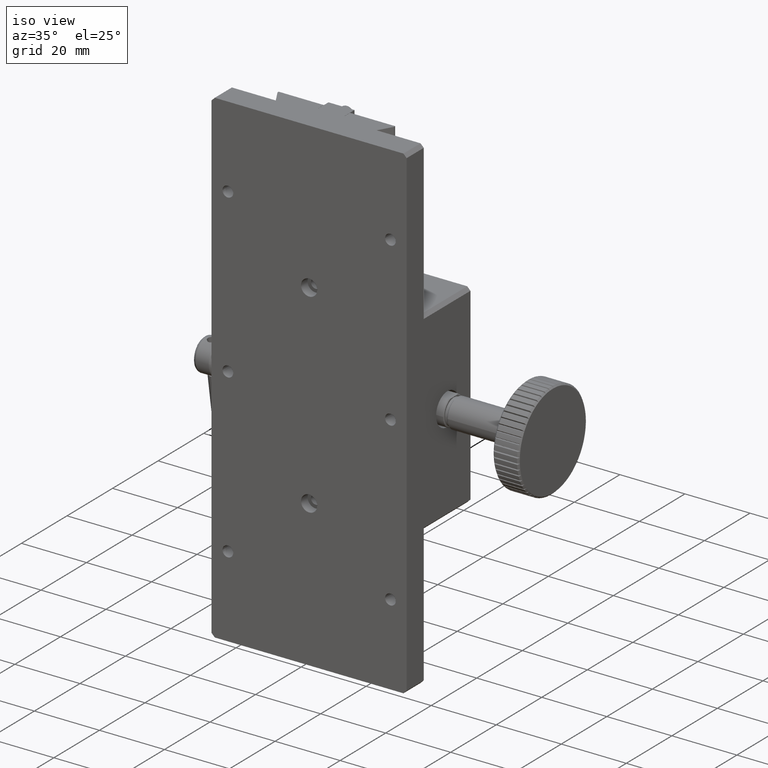
[diagram: clean part render]
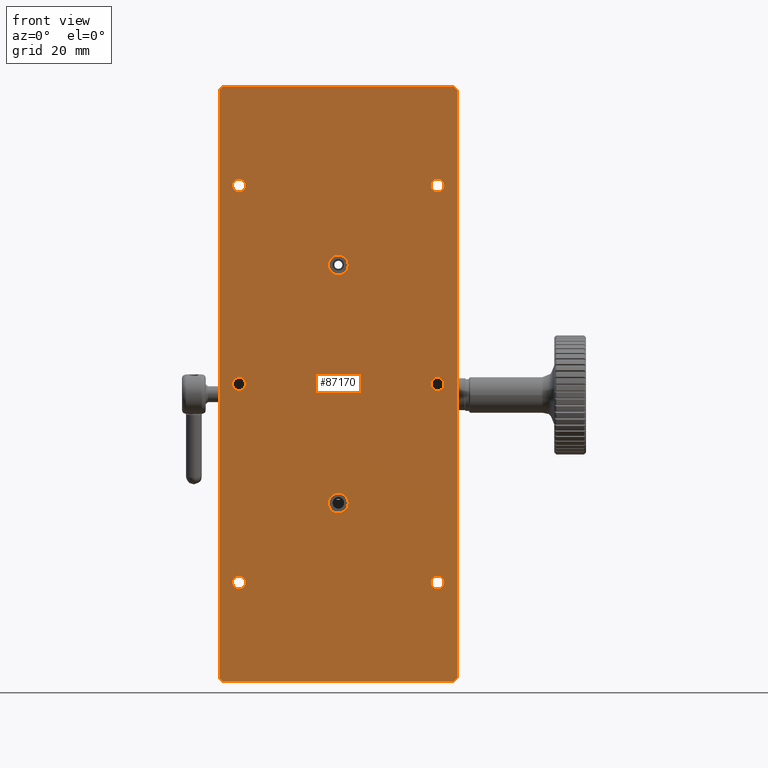
[diagram: tour spotlight — one face highlighted and labeled with its STEP entity id]
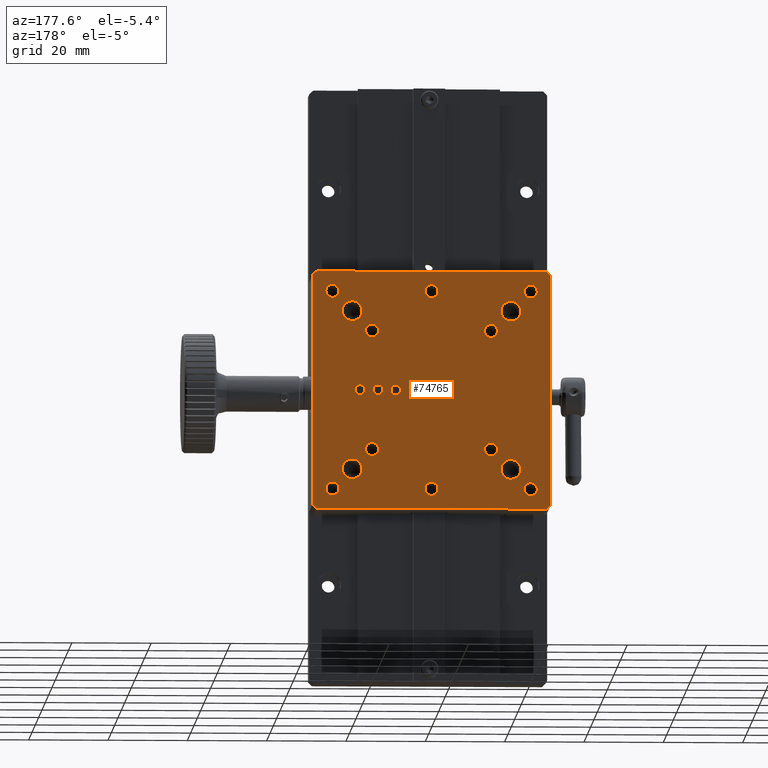
[diagram: tour spotlight — one face highlighted and labeled with its STEP entity id]
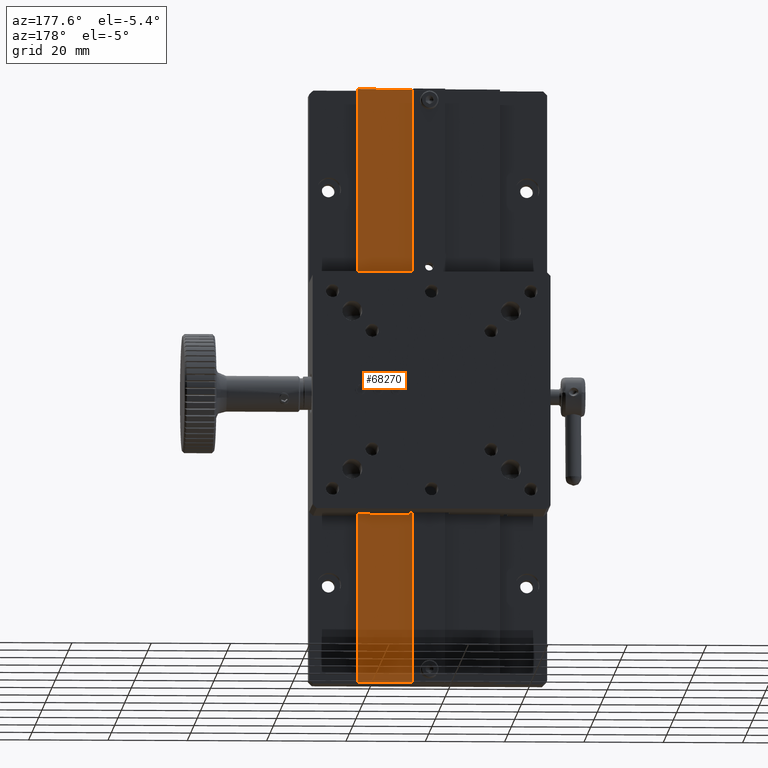
[diagram: tour spotlight — one face highlighted and labeled with its STEP entity id]
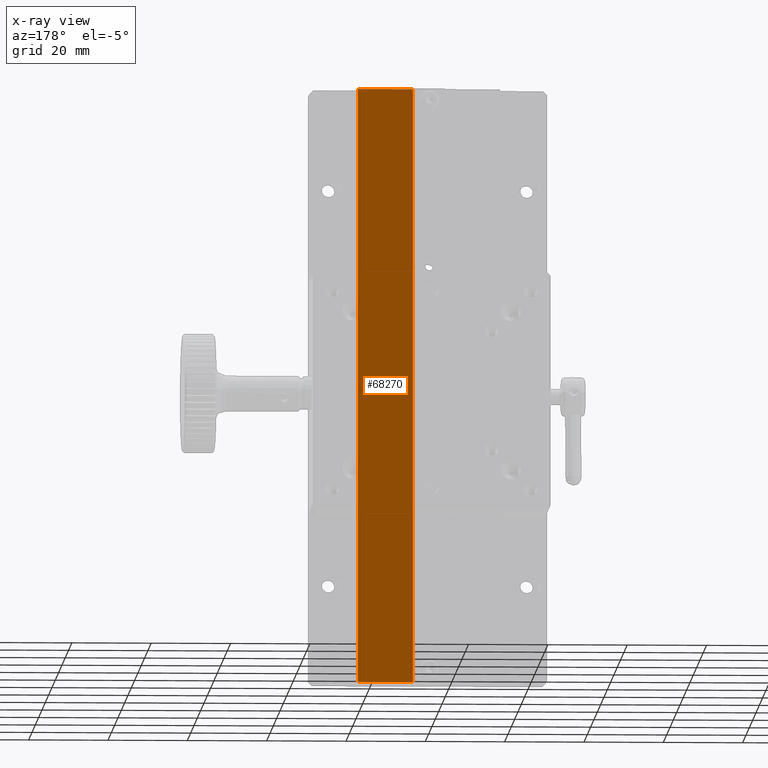
[diagram: x-ray of the same camera — body ghosted, this tour face saturated]
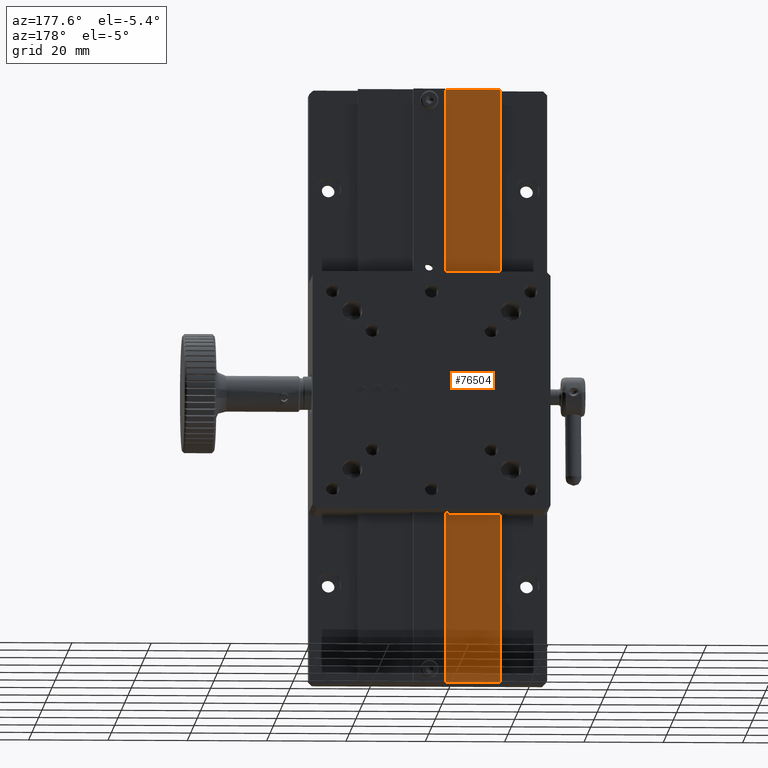
[diagram: tour spotlight — one face highlighted and labeled with its STEP entity id]
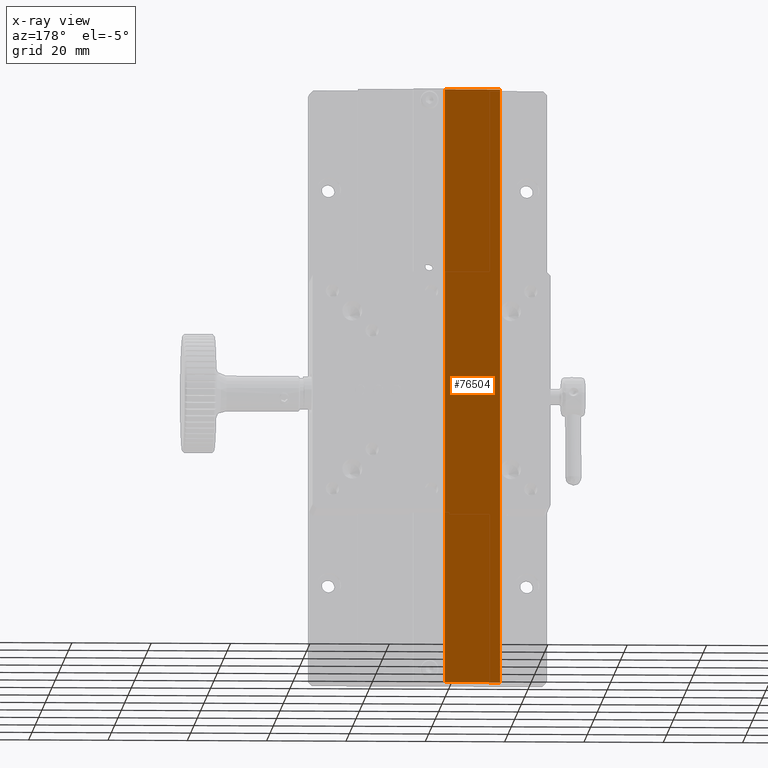
[diagram: x-ray of the same camera — body ghosted, this tour face saturated]
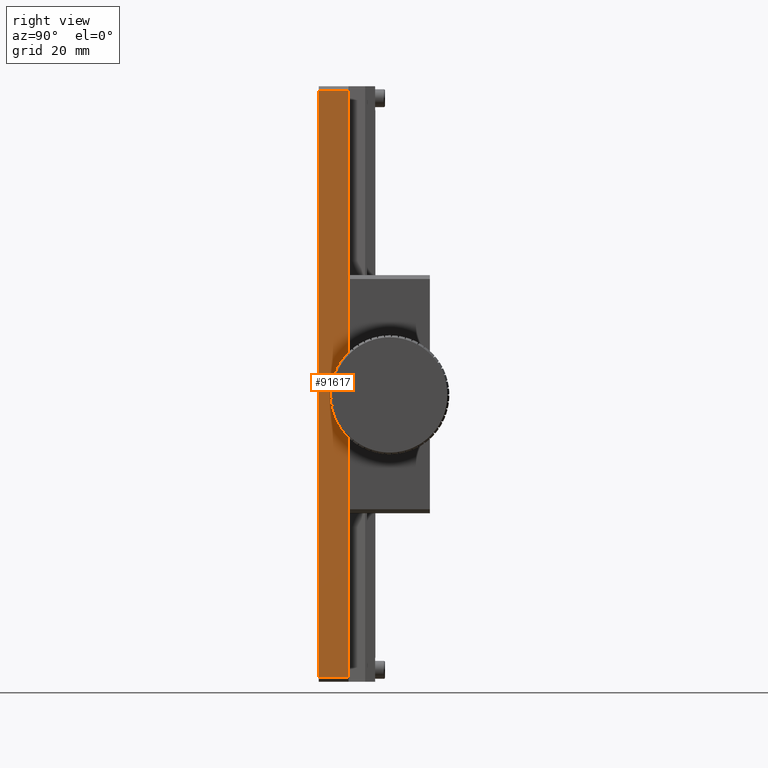
[diagram: tour spotlight — one face highlighted and labeled with its STEP entity id]
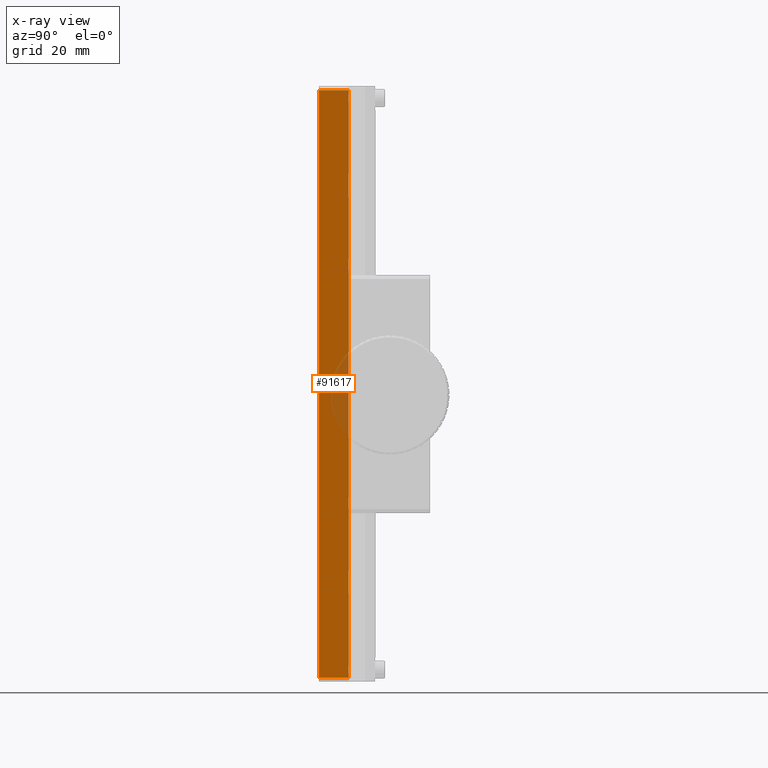
[diagram: x-ray of the same camera — body ghosted, this tour face saturated]
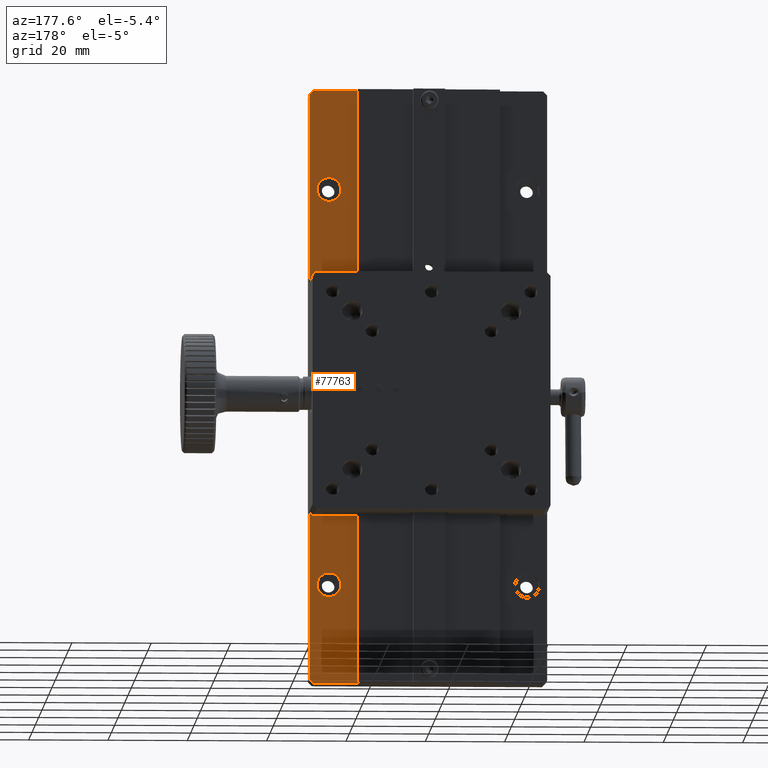
[diagram: tour spotlight — one face highlighted and labeled with its STEP entity id]
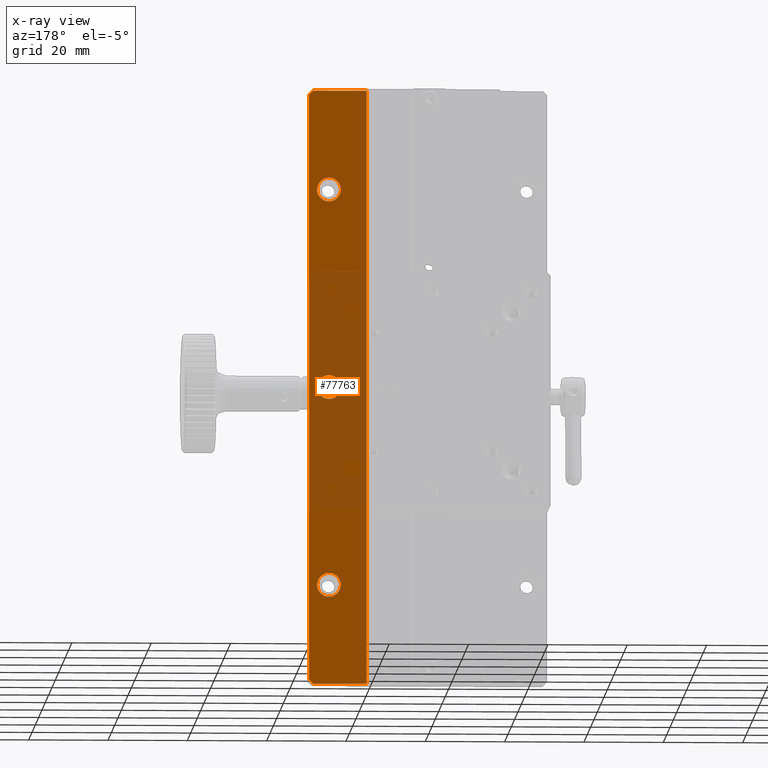
[diagram: x-ray of the same camera — body ghosted, this tour face saturated]
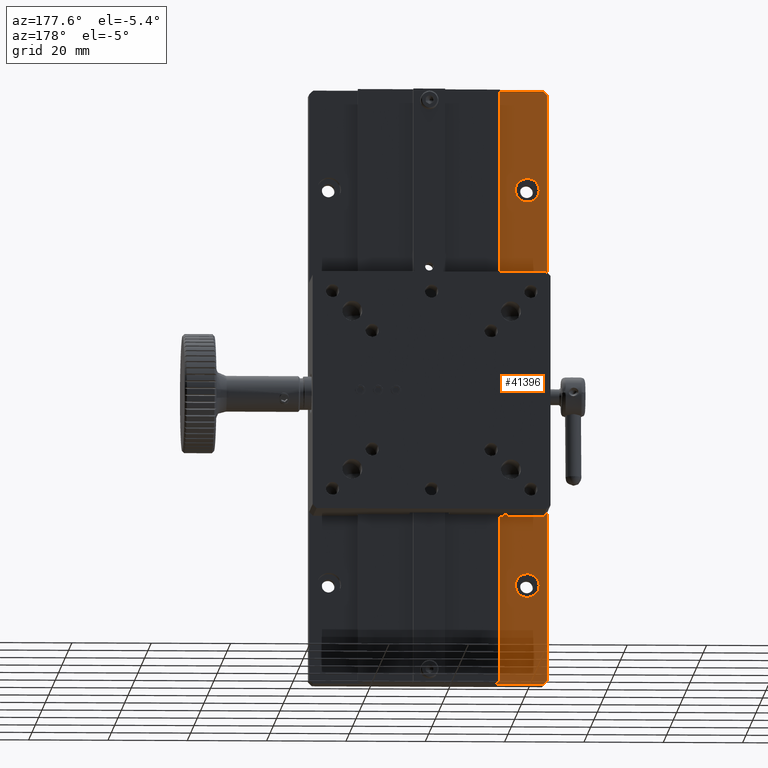
[diagram: tour spotlight — one face highlighted and labeled with its STEP entity id]
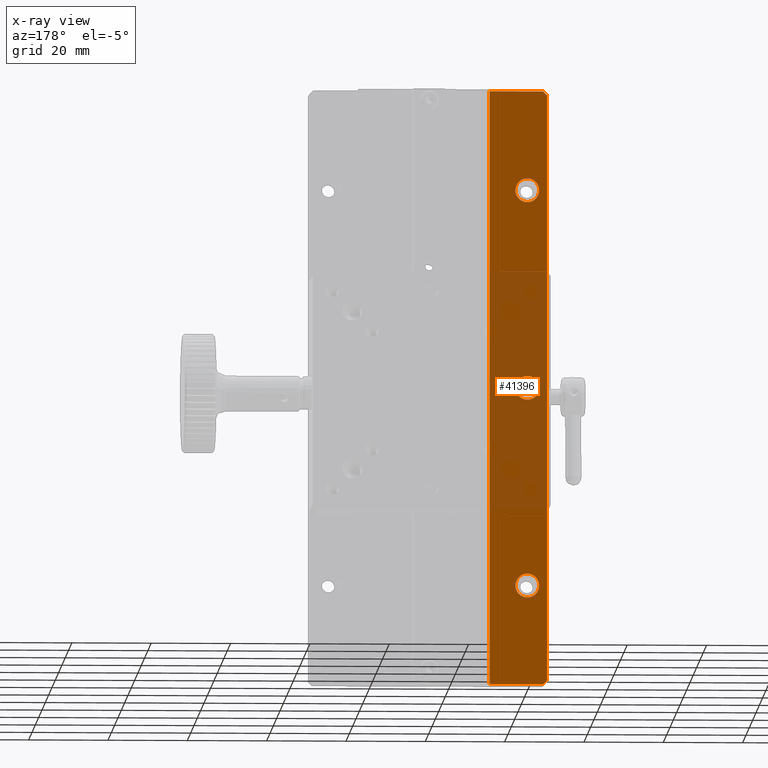
[diagram: x-ray of the same camera — body ghosted, this tour face saturated]
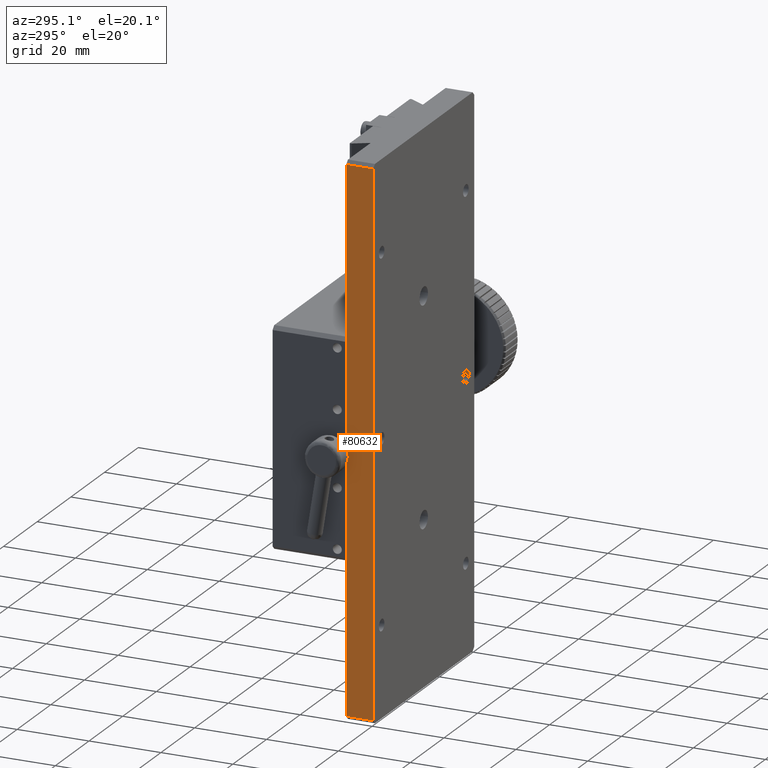
[diagram: tour spotlight — one face highlighted and labeled with its STEP entity id]
A machine part: a face-by-face anatomy tour. The part has 601 B-rep faces; the first image is the clean iso view, then the 8 largest visible faces are spotlighted one at a time (largest first), each with its STEP entity span.

Face 1 — front view, entity #87170. In plain terms, the highlighted planar face has unit normal (-0, 1, 0).
Definition (entity closure, byte-faithful):
#103 = CARTESIAN_POINT ( 'NONE',  ( 35.50156960994751643, 57.10272800986759734, 13.82318078334729350 ) ) ;
#255 = DIRECTION ( 'NONE',  ( -1.000000000000000000, -8.410780489584597367E-15, 0.000000000000000000 ) ) ;
#374 = LINE ( 'NONE', #31070, #55233 ) ;
#974 = AXIS2_PLACEMENT_3D ( 'NONE', #34827, #3118, #34335 ) ;
#2333 = VERTEX_POINT ( 'NONE', #95917 ) ;
#2796 = EDGE_LOOP ( 'NONE', ( #41525 ) ) ;
#3118 = DIRECTION ( 'NONE',  ( 6.982962677686266711E-15, -1.000000000000000000, -0.000000000000000000 ) ) ;
#4709 = AXIS2_PLACEMENT_3D ( 'NONE', #36064, #21696, #84100 ) ;
#5353 = EDGE_LOOP ( 'NONE', ( #34845 ) ) ;
#5745 = EDGE_CURVE ( 'NONE', #76038, #26980, #7831, .T. ) ;
#6803 = EDGE_CURVE ( 'NONE', #79972, #76038, #19048, .T. ) ;
#7523 = FACE_BOUND ( 'NONE', #71891, .T. ) ;
#7831 = LINE ( 'NONE', #87122, #94412 ) ;
#7907 = VECTOR ( 'NONE', #38108, 1000.000000000000000 ) ;
#8007 = CIRCLE ( 'NONE', #21070, 2.500000000000002220 ) ;
#10017 = VERTEX_POINT ( 'NONE', #35039 ) ;
#15128 = DIRECTION ( 'NONE',  ( -1.000000000000000000, -8.410780489584526369E-15, 0.000000000000000000 ) ) ;
#15218 = FACE_BOUND ( 'NONE', #29113, .T. ) ;
#16162 = AXIS2_PLACEMENT_3D ( 'NONE', #71362, #93852, #15128 ) ;
#16332 = CARTESIAN_POINT ( 'NONE',  ( 64.50156960994755195, 57.10272800986770392, 58.82318078334727574 ) ) ;
#17340 = DIRECTION ( 'NONE',  ( 6.982962677686266711E-15, -1.000000000000000000, 0.000000000000000000 ) ) ;
#19048 = LINE ( 'NONE', #43089, #89536 ) ;
#19937 = ORIENTED_EDGE ( 'NONE', *, *, #76616, .F. ) ;
#20476 = LINE ( 'NONE', #58853, #95595 ) ;
#21070 = AXIS2_PLACEMENT_3D ( 'NONE', #16332, #17340, #85397 ) ;
#21571 = VERTEX_POINT ( 'NONE', #91661 ) ;
#21696 = DIRECTION ( 'NONE',  ( 6.982962677686266711E-15, -1.000000000000000000, -0.000000000000000000 ) ) ;
#23080 = CARTESIAN_POINT ( 'NONE',  ( 37.85156960994753916, 57.10272800986749786, 138.8231807833472544 ) ) ;
#23084 = EDGE_LOOP ( 'NONE', ( #49760 ) ) ;
#24834 = DIRECTION ( 'NONE',  ( -0.000000000000000000, -0.000000000000000000, -1.000000000000000000 ) ) ;
#26160 = ORIENTED_EDGE ( 'NONE', *, *, #71462, .F. ) ;
#26980 = VERTEX_POINT ( 'NONE', #74937 ) ;
#27550 = CIRCLE ( 'NONE', #38955, 1.649999999999984812 ) ;
#29113 = EDGE_LOOP ( 'NONE', ( #58450 ) ) ;
#31070 = CARTESIAN_POINT ( 'NONE',  ( 35.50156960994751643, 57.10272800986749786, 163.8231807833472828 ) ) ;
#31739 = DIRECTION ( 'NONE',  ( -1.000000000000000000, -8.410780489584526369E-15, 0.000000000000000000 ) ) ;
#31873 = DIRECTION ( 'NONE',  ( -0.7071067811865573427, 0.000000000000000000, 0.7071067811865378028 ) ) ;
#32979 = CARTESIAN_POINT ( 'NONE',  ( 89.50156960994752353, 57.10272800986787445, 138.8231807833472544 ) ) ;
#33935 = EDGE_CURVE ( 'NONE', #2333, #2333, #40419, .T. ) ;
#34335 = DIRECTION ( 'NONE',  ( -1.000000000000000000, -8.410780489584597367E-15, 0.000000000000000000 ) ) ;
#34827 = CARTESIAN_POINT ( 'NONE',  ( 39.50156960994752353, 57.10272800986751207, 138.8231807833472544 ) ) ;
#34845 = ORIENTED_EDGE ( 'NONE', *, *, #33935, .F. ) ;
#35039 = CARTESIAN_POINT ( 'NONE',  ( 94.50156960994752353, 57.10272800986790998, 162.8231807833472828 ) ) ;
#36064 = CARTESIAN_POINT ( 'NONE',  ( 39.50156960994752353, 57.10272800986751207, 38.82318078334726863 ) ) ;
#36916 = VERTEX_POINT ( 'NONE', #38423 ) ;
#37754 = ORIENTED_EDGE ( 'NONE', *, *, #5745, .F. ) ;
#38108 = DIRECTION ( 'NONE',  ( -0.7071067811865573427, 0.000000000000000000, -0.7071067811865378028 ) ) ;
#38423 = CARTESIAN_POINT ( 'NONE',  ( 87.85156960994753206, 57.10272800986786024, 38.82318078334726152 ) ) ;
#38729 = FACE_BOUND ( 'NONE', #5353, .T. ) ;
#38955 = AXIS2_PLACEMENT_3D ( 'NONE', #32979, #70331, #255 ) ;
#39155 = CIRCLE ( 'NONE', #63619, 1.649999999999998579 ) ;
#39250 = PLANE ( 'NONE',  #78110 ) ;
#40419 = CIRCLE ( 'NONE', #4709, 1.649999999999998579 ) ;
#40489 = DIRECTION ( 'NONE',  ( 0.000000000000000000, 0.000000000000000000, 1.000000000000000000 ) ) ;
#41525 = ORIENTED_EDGE ( 'NONE', *, *, #76999, .F. ) ;
#41564 = DIRECTION ( 'NONE',  ( 6.982962677686266711E-15, -1.000000000000000000, -0.000000000000000000 ) ) ;
#41763 = DIRECTION ( 'NONE',  ( -1.000000000000000000, -6.982962677686266711E-15, 0.000000000000000000 ) ) ;
#43089 = CARTESIAN_POINT ( 'NONE',  ( 94.50156960994752353, 57.10272800986790998, 13.82318078334729350 ) ) ;
#43399 = EDGE_CURVE ( 'NONE', #10017, #62697, #69878, .T. ) ;
#43512 = DIRECTION ( 'NONE',  ( 1.000000000000000000, 6.982962677686266711E-15, -0.000000000000000000 ) ) ;
#44303 = LINE ( 'NONE', #77005, #7907 ) ;
#46412 = FACE_BOUND ( 'NONE', #92394, .T. ) ;
#46655 = CIRCLE ( 'NONE', #974, 1.649999999999984812 ) ;
#46764 = CARTESIAN_POINT ( 'NONE',  ( 93.50156960994752353, 57.10272800986790287, 163.8231807833472828 ) ) ;
#48886 = AXIS2_PLACEMENT_3D ( 'NONE', #88629, #41564, #49737 ) ;
#49737 = DIRECTION ( 'NONE',  ( -1.000000000000000000, -8.410780489584526369E-15, 0.000000000000000000 ) ) ;
#49760 = ORIENTED_EDGE ( 'NONE', *, *, #91532, .F. ) ;
#50578 = DIRECTION ( 'NONE',  ( 6.982962677686266711E-15, -1.000000000000000000, 0.000000000000000000 ) ) ;
#50838 = EDGE_CURVE ( 'NONE', #88276, #88276, #60263, .T. ) ;
#51151 = CARTESIAN_POINT ( 'NONE',  ( 67.00156960994755195, 57.10272800986772523, 58.82318078334727574 ) ) ;
#51886 = VECTOR ( 'NONE', #64355, 999.9999999999998863 ) ;
#53135 = EDGE_LOOP ( 'NONE', ( #94659, #61042, #62073, #19937, #58289, #53592, #37754, #89011 ) ) ;
#53360 = EDGE_CURVE ( 'NONE', #21571, #21571, #73423, .T. ) ;
#53592 = ORIENTED_EDGE ( 'NONE', *, *, #60782, .F. ) ;
#54086 = FACE_OUTER_BOUND ( 'NONE', #53135, .T. ) ;
#54548 = ORIENTED_EDGE ( 'NONE', *, *, #56438, .F. ) ;
#54779 = CARTESIAN_POINT ( 'NONE',  ( 67.00156960994755195, 57.10272800986772523, 118.8231807833472971 ) ) ;
#55147 = EDGE_LOOP ( 'NONE', ( #26160 ) ) ;
#55233 = VECTOR ( 'NONE', #63255, 999.9999999999998863 ) ;
#55828 = LINE ( 'NONE', #94704, #83414 ) ;
#56438 = EDGE_CURVE ( 'NONE', #36916, #36916, #39155, .T. ) ;
#58289 = ORIENTED_EDGE ( 'NONE', *, *, #87067, .T. ) ;
#58450 = ORIENTED_EDGE ( 'NONE', *, *, #50838, .F. ) ;
#58853 = CARTESIAN_POINT ( 'NONE',  ( 94.50156960994752353, 57.10272800986790998, 163.8231807833472828 ) ) ;
#59168 = ORIENTED_EDGE ( 'NONE', *, *, #65409, .F. ) ;
#60263 = CIRCLE ( 'NONE', #16162, 1.649999999999998579 ) ;
#60782 = EDGE_CURVE ( 'NONE', #26980, #70079, #55828, .T. ) ;
#61042 = ORIENTED_EDGE ( 'NONE', *, *, #43399, .F. ) ;
#62073 = ORIENTED_EDGE ( 'NONE', *, *, #100862, .T. ) ;
#62263 = FACE_BOUND ( 'NONE', #100164, .T. ) ;
#62697 = VERTEX_POINT ( 'NONE', #82888 ) ;
#63255 = DIRECTION ( 'NONE',  ( -0.7071067811865425767, 0.000000000000000000, -0.7071067811865525687 ) ) ;
#63338 = VECTOR ( 'NONE', #24834, 1000.000000000000000 ) ;
#63619 = AXIS2_PLACEMENT_3D ( 'NONE', #100775, #85961, #31739 ) ;
#64355 = DIRECTION ( 'NONE',  ( -0.7071067811865425767, 0.000000000000000000, 0.7071067811865525687 ) ) ;
#64491 = EDGE_CURVE ( 'NONE', #62697, #79972, #44303, .T. ) ;
#65409 = EDGE_CURVE ( 'NONE', #99316, #99316, #27550, .T. ) ;
#68120 = CARTESIAN_POINT ( 'NONE',  ( 37.85156960994752495, 57.10272800986749786, 88.82318078334729705 ) ) ;
#69878 = LINE ( 'NONE', #95417, #63338 ) ;
#69938 = FACE_BOUND ( 'NONE', #2796, .T. ) ;
#70079 = VERTEX_POINT ( 'NONE', #72842 ) ;
#70331 = DIRECTION ( 'NONE',  ( 6.982962677686266711E-15, -1.000000000000000000, -0.000000000000000000 ) ) ;
#71362 = CARTESIAN_POINT ( 'NONE',  ( 39.50156960994752353, 57.10272800986751207, 88.82318078334729705 ) ) ;
#71462 = EDGE_CURVE ( 'NONE', #72192, #72192, #94678, .T. ) ;
#71891 = EDGE_LOOP ( 'NONE', ( #54548 ) ) ;
#72054 = CARTESIAN_POINT ( 'NONE',  ( 93.50156960994753774, 57.10272800986790998, 163.8231807833472828 ) ) ;
#72192 = VERTEX_POINT ( 'NONE', #54779 ) ;
#72842 = CARTESIAN_POINT ( 'NONE',  ( 34.50156960994753064, 57.10272800986749786, 162.8231807833472828 ) ) ;
#73423 = CIRCLE ( 'NONE', #48886, 1.649999999999998579 ) ;
#73619 = DIRECTION ( 'NONE',  ( 1.000000000000000000, 8.326672684688666165E-15, 0.000000000000000000 ) ) ;
#74937 = CARTESIAN_POINT ( 'NONE',  ( 34.50156960994753064, 57.10272800986749786, 14.82318078334725975 ) ) ;
#76038 = VERTEX_POINT ( 'NONE', #103 ) ;
#76616 = EDGE_CURVE ( 'NONE', #97807, #93651, #20476, .T. ) ;
#76728 = AXIS2_PLACEMENT_3D ( 'NONE', #97110, #50578, #73619 ) ;
#76999 = EDGE_CURVE ( 'NONE', #87522, #87522, #46655, .T. ) ;
#77005 = CARTESIAN_POINT ( 'NONE',  ( 94.50156960994752353, 57.10272800986790998, 14.82318078334722777 ) ) ;
#78110 = AXIS2_PLACEMENT_3D ( 'NONE', #78117, #89316, #41763 ) ;
#78117 = CARTESIAN_POINT ( 'NONE',  ( 94.50156960994752353, 57.10272800986790998, 163.8231807833472828 ) ) ;
#79720 = LINE ( 'NONE', #72054, #51886 ) ;
#79972 = VERTEX_POINT ( 'NONE', #80640 ) ;
#80640 = CARTESIAN_POINT ( 'NONE',  ( 93.50156960994750932, 57.10272800986790287, 13.82318078334727929 ) ) ;
#82888 = CARTESIAN_POINT ( 'NONE',  ( 94.50156960994752353, 57.10272800986790998, 14.82318078334725620 ) ) ;
#83414 = VECTOR ( 'NONE', #40489, 1000.000000000000000 ) ;
#84100 = DIRECTION ( 'NONE',  ( -1.000000000000000000, -8.410780489584526369E-15, 0.000000000000000000 ) ) ;
#84982 = CARTESIAN_POINT ( 'NONE',  ( 87.85156960994754627, 57.10272800986786024, 138.8231807833472544 ) ) ;
#85293 = FACE_BOUND ( 'NONE', #55147, .T. ) ;
#85397 = DIRECTION ( 'NONE',  ( 1.000000000000000000, 8.326672684688666165E-15, 0.000000000000000000 ) ) ;
#85961 = DIRECTION ( 'NONE',  ( 6.982962677686266711E-15, -1.000000000000000000, -0.000000000000000000 ) ) ;
#87067 = EDGE_CURVE ( 'NONE', #97807, #70079, #374, .T. ) ;
#87122 = CARTESIAN_POINT ( 'NONE',  ( 34.50156960994753064, 57.10272800986749786, 14.82318078334725264 ) ) ;
#87170 = ADVANCED_FACE ( 'NONE', ( #54086, #85293, #101126, #15218, #62263, #46412, #7523, #38729, #69938 ), #39250, .F. ) ;
#87522 = VERTEX_POINT ( 'NONE', #23080 ) ;
#88030 = VERTEX_POINT ( 'NONE', #51151 ) ;
#88276 = VERTEX_POINT ( 'NONE', #68120 ) ;
#88629 = CARTESIAN_POINT ( 'NONE',  ( 89.50156960994753774, 57.10272800986787445, 88.82318078334729705 ) ) ;
#89011 = ORIENTED_EDGE ( 'NONE', *, *, #6803, .F. ) ;
#89316 = DIRECTION ( 'NONE',  ( -6.982962677686266711E-15, 1.000000000000000000, 0.000000000000000000 ) ) ;
#89536 = VECTOR ( 'NONE', #90649, 1000.000000000000000 ) ;
#90649 = DIRECTION ( 'NONE',  ( -1.000000000000000000, -6.982962677686266711E-15, 0.000000000000000000 ) ) ;
#91532 = EDGE_CURVE ( 'NONE', #88030, #88030, #8007, .T. ) ;
#91661 = CARTESIAN_POINT ( 'NONE',  ( 87.85156960994754627, 57.10272800986786024, 88.82318078334729705 ) ) ;
#92394 = EDGE_LOOP ( 'NONE', ( #59168 ) ) ;
#93651 = VERTEX_POINT ( 'NONE', #46764 ) ;
#93852 = DIRECTION ( 'NONE',  ( 6.982962677686266711E-15, -1.000000000000000000, -0.000000000000000000 ) ) ;
#93860 = CARTESIAN_POINT ( 'NONE',  ( 35.50156960994750932, 57.10272800986759734, 163.8231807833472828 ) ) ;
#94412 = VECTOR ( 'NONE', #31873, 1000.000000000000000 ) ;
#94659 = ORIENTED_EDGE ( 'NONE', *, *, #64491, .F. ) ;
#94678 = CIRCLE ( 'NONE', #76728, 2.500000000000002220 ) ;
#94704 = CARTESIAN_POINT ( 'NONE',  ( 34.50156960994753064, 57.10272800986749075, 163.8231807833472828 ) ) ;
#95417 = CARTESIAN_POINT ( 'NONE',  ( 94.50156960994752353, 57.10272800986790998, 163.8231807833472828 ) ) ;
#95595 = VECTOR ( 'NONE', #43512, 1000.000000000000000 ) ;
#95917 = CARTESIAN_POINT ( 'NONE',  ( 37.85156960994752495, 57.10272800986749786, 38.82318078334726863 ) ) ;
#97110 = CARTESIAN_POINT ( 'NONE',  ( 64.50156960994755195, 57.10272800986770392, 118.8231807833472971 ) ) ;
#97807 = VERTEX_POINT ( 'NONE', #93860 ) ;
#98257 = ORIENTED_EDGE ( 'NONE', *, *, #53360, .F. ) ;
#99316 = VERTEX_POINT ( 'NONE', #84982 ) ;
#100164 = EDGE_LOOP ( 'NONE', ( #98257 ) ) ;
#100775 = CARTESIAN_POINT ( 'NONE',  ( 89.50156960994752353, 57.10272800986787445, 38.82318078334726152 ) ) ;
#100862 = EDGE_CURVE ( 'NONE', #10017, #93651, #79720, .T. ) ;
#101126 = FACE_BOUND ( 'NONE', #23084, .T. ) ;

Face 2 — auxiliary view, entity #74765. In plain terms, the highlighted planar face has unit normal (0, -1, 0).
Definition (entity closure, byte-faithful):
#892 = ORIENTED_EDGE ( 'NONE', *, *, #67695, .F. ) ;
#969 = EDGE_CURVE ( 'NONE', #10589, #12219, #45014, .T. ) ;
#1080 = VERTEX_POINT ( 'NONE', #93159 ) ;
#1498 = EDGE_CURVE ( 'NONE', #19822, #19822, #4475, .T. ) ;
#1696 = EDGE_LOOP ( 'NONE', ( #20315 ) ) ;
#1842 = ORIENTED_EDGE ( 'NONE', *, *, #42775, .F. ) ;
#3746 = CARTESIAN_POINT ( 'NONE',  ( 34.50156960994731037, 85.10272800986750497, 116.2601923575758462 ) ) ;
#4437 = DIRECTION ( 'NONE',  ( -6.982962677686266711E-15, 1.000000000000000000, 0.000000000000000000 ) ) ;
#4466 = CARTESIAN_POINT ( 'NONE',  ( 87.85156960994734732, 85.10272800986786024, 111.2601923575758320 ) ) ;
#4475 = CIRCLE ( 'NONE', #19129, 1.649999999999998579 ) ;
#4719 = VECTOR ( 'NONE', #99086, 999.9999999999998863 ) ;
#4762 = FACE_BOUND ( 'NONE', #21686, .T. ) ;
#5272 = FACE_BOUND ( 'NONE', #13842, .T. ) ;
#5351 = CARTESIAN_POINT ( 'NONE',  ( 34.50156960994731037, 85.10272800986751918, 57.26019235757583203 ) ) ;
#5773 = CIRCLE ( 'NONE', #53164, 2.500000000000002220 ) ;
#5900 = CARTESIAN_POINT ( 'NONE',  ( 79.50156960994731037, 85.10272800986780339, 71.26019235757584624 ) ) ;
#6146 = CIRCLE ( 'NONE', #74743, 1.649999999999998579 ) ;
#7013 = CARTESIAN_POINT ( 'NONE',  ( 94.50156960994731037, 85.10272800986791708, 57.26019235757583914 ) ) ;
#7335 = ORIENTED_EDGE ( 'NONE', *, *, #22117, .F. ) ;
#7957 = AXIS2_PLACEMENT_3D ( 'NONE', #26844, #47883, #79090 ) ;
#8164 = CARTESIAN_POINT ( 'NONE',  ( 34.50156960994731037, 85.10272800986750497, 56.26019235757585335 ) ) ;
#9044 = EDGE_CURVE ( 'NONE', #43857, #43857, #48791, .T. ) ;
#9662 = EDGE_CURVE ( 'NONE', #13669, #13669, #94570, .T. ) ;
#10589 = VERTEX_POINT ( 'NONE', #12233 ) ;
#10610 = DIRECTION ( 'NONE',  ( -6.982962677686266711E-15, 1.000000000000000000, 0.000000000000000000 ) ) ;
#10927 = FACE_BOUND ( 'NONE', #56618, .T. ) ;
#11014 = CARTESIAN_POINT ( 'NONE',  ( 81.25156960994732458, 85.10272800986780339, 86.26019235757584624 ) ) ;
#11305 = CARTESIAN_POINT ( 'NONE',  ( 64.50156960994731037, 85.10272800986768971, 111.2601923575758320 ) ) ;
#11938 = FACE_BOUND ( 'NONE', #59172, .T. ) ;
#12125 = CARTESIAN_POINT ( 'NONE',  ( 49.50156960994731037, 85.10272800986759023, 101.2601923575758320 ) ) ;
#12219 = VERTEX_POINT ( 'NONE', #86847 ) ;
#12233 = CARTESIAN_POINT ( 'NONE',  ( 35.50156960994734590, 85.10272800986760444, 56.26019235757581782 ) ) ;
#12404 = EDGE_LOOP ( 'NONE', ( #34419 ) ) ;
#12818 = DIRECTION ( 'NONE',  ( -1.000000000000000000, -8.410780489584526369E-15, 0.000000000000000000 ) ) ;
#12952 = FACE_OUTER_BOUND ( 'NONE', #28460, .T. ) ;
#12989 = CARTESIAN_POINT ( 'NONE',  ( 93.50156960994733879, 85.10272800986791708, 116.2601923575758462 ) ) ;
#13069 = VECTOR ( 'NONE', #30660, 1000.000000000000000 ) ;
#13190 = LINE ( 'NONE', #75595, #4719 ) ;
#13669 = VERTEX_POINT ( 'NONE', #4466 ) ;
#13842 = EDGE_LOOP ( 'NONE', ( #38537 ) ) ;
#14608 = CIRCLE ( 'NONE', #48939, 1.649999999999998579 ) ;
#16348 = DIRECTION ( 'NONE',  ( -1.000000000000000000, -8.410780489584526369E-15, 0.000000000000000000 ) ) ;
#16518 = AXIS2_PLACEMENT_3D ( 'NONE', #47663, #68798, #71192 ) ;
#17330 = CIRCLE ( 'NONE', #74439, 2.500000000000002220 ) ;
#18149 = EDGE_CURVE ( 'NONE', #93410, #93410, #29434, .T. ) ;
#18186 = CARTESIAN_POINT ( 'NONE',  ( 87.85156960994733311, 85.10272800986786024, 61.26019235757583914 ) ) ;
#18486 = CARTESIAN_POINT ( 'NONE',  ( 94.50156960994731037, 85.10272800986791708, 116.2601923575758462 ) ) ;
#18597 = FACE_BOUND ( 'NONE', #76934, .T. ) ;
#18612 = CARTESIAN_POINT ( 'NONE',  ( 79.50156960994731037, 85.10272800986780339, 101.2601923575758462 ) ) ;
#18749 = DIRECTION ( 'NONE',  ( -1.000000000000000000, -1.110223024625168058E-14, 0.000000000000000000 ) ) ;
#19129 = AXIS2_PLACEMENT_3D ( 'NONE', #31694, #40385, #16348 ) ;
#19603 = FACE_BOUND ( 'NONE', #81864, .T. ) ;
#19822 = VERTEX_POINT ( 'NONE', #35664 ) ;
#20102 = FACE_BOUND ( 'NONE', #33283, .T. ) ;
#20315 = ORIENTED_EDGE ( 'NONE', *, *, #69199, .F. ) ;
#21174 = DIRECTION ( 'NONE',  ( -1.000000000000000000, -6.982962677686266711E-15, -0.000000000000000000 ) ) ;
#21686 = EDGE_LOOP ( 'NONE', ( #91882 ) ) ;
#21742 = CARTESIAN_POINT ( 'NONE',  ( 84.50156960994731037, 85.10272800986783182, 66.26019235757584624 ) ) ;
#22117 = EDGE_CURVE ( 'NONE', #31015, #31015, #14608, .T. ) ;
#22563 = VERTEX_POINT ( 'NONE', #83972 ) ;
#22639 = AXIS2_PLACEMENT_3D ( 'NONE', #98943, #51891, #97948 ) ;
#25400 = ORIENTED_EDGE ( 'NONE', *, *, #82102, .F. ) ;
#25600 = CARTESIAN_POINT ( 'NONE',  ( 62.85156960994731179, 85.10272800986767550, 61.26019235757583914 ) ) ;
#26179 = DIRECTION ( 'NONE',  ( -6.982962677686266711E-15, 1.000000000000000000, 0.000000000000000000 ) ) ;
#26603 = VERTEX_POINT ( 'NONE', #90039 ) ;
#26653 = ORIENTED_EDGE ( 'NONE', *, *, #82307, .F. ) ;
#26844 = CARTESIAN_POINT ( 'NONE',  ( 89.50156960994733879, 85.10272800986787445, 111.2601923575758320 ) ) ;
#26933 = ORIENTED_EDGE ( 'NONE', *, *, #969, .F. ) ;
#27772 = FACE_BOUND ( 'NONE', #90086, .T. ) ;
#28277 = FACE_BOUND ( 'NONE', #12404, .T. ) ;
#28460 = EDGE_LOOP ( 'NONE', ( #30493, #26933, #34795, #75844, #892, #41568, #32396, #101089 ) ) ;
#28809 = DIRECTION ( 'NONE',  ( -0.7071067811865450192, -0.000000000000000000, 0.7071067811865500152 ) ) ;
#29249 = VERTEX_POINT ( 'NONE', #60455 ) ;
#29343 = DIRECTION ( 'NONE',  ( -6.982962677686266711E-15, 1.000000000000000000, 0.000000000000000000 ) ) ;
#29434 = CIRCLE ( 'NONE', #86613, 1.249999999999987121 ) ;
#30002 = CARTESIAN_POINT ( 'NONE',  ( 77.85156960994730468, 85.10272800986778918, 101.2601923575758462 ) ) ;
#30493 = ORIENTED_EDGE ( 'NONE', *, *, #45814, .T. ) ;
#30496 = CIRCLE ( 'NONE', #99494, 1.649999999999998579 ) ;
#30660 = DIRECTION ( 'NONE',  ( 0.000000000000000000, -0.000000000000000000, -1.000000000000000000 ) ) ;
#31015 = VERTEX_POINT ( 'NONE', #30002 ) ;
#31694 = CARTESIAN_POINT ( 'NONE',  ( 49.50156960994731037, 85.10272800986759023, 71.26019235757584624 ) ) ;
#32396 = ORIENTED_EDGE ( 'NONE', *, *, #73328, .F. ) ;
#32470 = CARTESIAN_POINT ( 'NONE',  ( 94.50156960994735300, 85.10272800986791708, 115.2601923575758462 ) ) ;
#32685 = VECTOR ( 'NONE', #21174, 1000.000000000000000 ) ;
#33283 = EDGE_LOOP ( 'NONE', ( #44236 ) ) ;
#33880 = EDGE_CURVE ( 'NONE', #42214, #42214, #48805, .T. ) ;
#33918 = AXIS2_PLACEMENT_3D ( 'NONE', #96255, #26179, #65563 ) ;
#34419 = ORIENTED_EDGE ( 'NONE', *, *, #86427, .F. ) ;
#34638 = DIRECTION ( 'NONE',  ( -1.000000000000000000, -8.410780489584526369E-15, 0.000000000000000000 ) ) ;
#34795 = ORIENTED_EDGE ( 'NONE', *, *, #67081, .T. ) ;
#34946 = DIRECTION ( 'NONE',  ( 6.982962677686266711E-15, -1.000000000000000000, 0.000000000000000000 ) ) ;
#35384 = AXIS2_PLACEMENT_3D ( 'NONE', #82695, #10610, #34638 ) ;
#35664 = CARTESIAN_POINT ( 'NONE',  ( 47.85156960994731179, 85.10272800986757602, 71.26019235757584624 ) ) ;
#35973 = FACE_BOUND ( 'NONE', #77922, .T. ) ;
#36348 = CARTESIAN_POINT ( 'NONE',  ( 35.50156960994729616, 85.10272800986751918, 116.2601923575758462 ) ) ;
#38537 = ORIENTED_EDGE ( 'NONE', *, *, #33880, .F. ) ;
#39182 = AXIS2_PLACEMENT_3D ( 'NONE', #11305, #51179, #12818 ) ;
#39623 = CARTESIAN_POINT ( 'NONE',  ( 35.50156960994733168, 85.10272800986760444, 116.2601923575758747 ) ) ;
#40385 = DIRECTION ( 'NONE',  ( -6.982962677686266711E-15, 1.000000000000000000, 0.000000000000000000 ) ) ;
#40613 = AXIS2_PLACEMENT_3D ( 'NONE', #47380, #93900, #70908 ) ;
#40711 = VERTEX_POINT ( 'NONE', #18186 ) ;
#40788 = VERTEX_POINT ( 'NONE', #32470 ) ;
#41508 = DIRECTION ( 'NONE',  ( -0.000000000000000000, 0.000000000000000000, 1.000000000000000000 ) ) ;
#41568 = ORIENTED_EDGE ( 'NONE', *, *, #59460, .F. ) ;
#41710 = VERTEX_POINT ( 'NONE', #71924 ) ;
#41785 = EDGE_LOOP ( 'NONE', ( #51199 ) ) ;
#42122 = PLANE ( 'NONE',  #79333 ) ;
#42214 = VERTEX_POINT ( 'NONE', #79083 ) ;
#42283 = CARTESIAN_POINT ( 'NONE',  ( 78.00156960994731037, 85.10272800986778918, 86.26019235757584624 ) ) ;
#42392 = EDGE_CURVE ( 'NONE', #40711, #40711, #6146, .T. ) ;
#42775 = EDGE_CURVE ( 'NONE', #41710, #41710, #45393, .T. ) ;
#42795 = DIRECTION ( 'NONE',  ( -6.982962677686266711E-15, 1.000000000000000000, 0.000000000000000000 ) ) ;
#43857 = VERTEX_POINT ( 'NONE', #59201 ) ;
#43939 = VECTOR ( 'NONE', #47429, 999.9999999999998863 ) ;
#44236 = ORIENTED_EDGE ( 'NONE', *, *, #62746, .F. ) ;
#44729 = VERTEX_POINT ( 'NONE', #5351 ) ;
#45008 = CARTESIAN_POINT ( 'NONE',  ( 34.50156960994731037, 85.10272800986750497, 116.2601923575758462 ) ) ;
#45014 = LINE ( 'NONE', #8164, #69805 ) ;
#45280 = DIRECTION ( 'NONE',  ( -6.982962677686266711E-15, 1.000000000000000000, 0.000000000000000000 ) ) ;
#45393 = CIRCLE ( 'NONE', #33918, 2.500000000000002220 ) ;
#45814 = EDGE_CURVE ( 'NONE', #89232, #12219, #45905, .T. ) ;
#45905 = LINE ( 'NONE', #7013, #78611 ) ;
#46203 = ORIENTED_EDGE ( 'NONE', *, *, #9662, .F. ) ;
#47186 = DIRECTION ( 'NONE',  ( -6.982962677686266711E-15, 1.000000000000000000, 0.000000000000000000 ) ) ;
#47380 = CARTESIAN_POINT ( 'NONE',  ( 39.50156960994731037, 85.10272800986751918, 111.2601923575758320 ) ) ;
#47429 = DIRECTION ( 'NONE',  ( -0.7071067811865425767, -0.000000000000000000, -0.7071067811865525687 ) ) ;
#47663 = CARTESIAN_POINT ( 'NONE',  ( 82.50156960994731037, 85.10272800986781760, 86.26019235757584624 ) ) ;
#47783 = EDGE_CURVE ( 'NONE', #94922, #94922, #60630, .T. ) ;
#47883 = DIRECTION ( 'NONE',  ( -6.982962677686266711E-15, 1.000000000000000000, 0.000000000000000000 ) ) ;
#48641 = VERTEX_POINT ( 'NONE', #55804 ) ;
#48791 = CIRCLE ( 'NONE', #40613, 1.649999999999998579 ) ;
#48805 = CIRCLE ( 'NONE', #22639, 2.500000000000002220 ) ;
#48939 = AXIS2_PLACEMENT_3D ( 'NONE', #18612, #88203, #49315 ) ;
#49315 = DIRECTION ( 'NONE',  ( -1.000000000000000000, -8.410780489584526369E-15, 0.000000000000000000 ) ) ;
#49795 = FACE_BOUND ( 'NONE', #41785, .T. ) ;
#50564 = CIRCLE ( 'NONE', #97970, 1.649999999999998579 ) ;
#50805 = FACE_BOUND ( 'NONE', #97319, .T. ) ;
#51133 = EDGE_LOOP ( 'NONE', ( #61769 ) ) ;
#51179 = DIRECTION ( 'NONE',  ( -6.982962677686266711E-15, 1.000000000000000000, 0.000000000000000000 ) ) ;
#51181 = DIRECTION ( 'NONE',  ( -1.000000000000000000, -5.551115123125777969E-15, 0.000000000000000000 ) ) ;
#51199 = ORIENTED_EDGE ( 'NONE', *, *, #76552, .F. ) ;
#51355 = DIRECTION ( 'NONE',  ( -1.000000000000000000, -1.110223024625168058E-14, 0.000000000000000000 ) ) ;
#51467 = EDGE_CURVE ( 'NONE', #29249, #29249, #97786, .T. ) ;
#51799 = FACE_BOUND ( 'NONE', #79650, .T. ) ;
#51891 = DIRECTION ( 'NONE',  ( -6.982962677686266711E-15, 1.000000000000000000, 0.000000000000000000 ) ) ;
#53088 = ORIENTED_EDGE ( 'NONE', *, *, #18149, .F. ) ;
#53164 = AXIS2_PLACEMENT_3D ( 'NONE', #90570, #96216, #51181 ) ;
#53259 = VERTEX_POINT ( 'NONE', #84465 ) ;
#55785 = DIRECTION ( 'NONE',  ( -1.000000000000000000, -8.410780489584561079E-15, 0.000000000000000000 ) ) ;
#55804 = CARTESIAN_POINT ( 'NONE',  ( 82.00156960994731037, 85.10272800986781760, 66.26019235757584624 ) ) ;
#56618 = EDGE_LOOP ( 'NONE', ( #26653 ) ) ;
#58199 = CARTESIAN_POINT ( 'NONE',  ( 94.50156960994735300, 85.10272800986791708, 57.26019235757587467 ) ) ;
#59172 = EDGE_LOOP ( 'NONE', ( #25400 ) ) ;
#59201 = CARTESIAN_POINT ( 'NONE',  ( 37.85156960994731179, 85.10272800986751918, 111.2601923575758320 ) ) ;
#59460 = EDGE_CURVE ( 'NONE', #68983, #69960, #69233, .T. ) ;
#59483 = DIRECTION ( 'NONE',  ( 1.000000000000000000, 6.982962677686266711E-15, 0.000000000000000000 ) ) ;
#59820 = VECTOR ( 'NONE', #28809, 1000.000000000000000 ) ;
#60455 = CARTESIAN_POINT ( 'NONE',  ( 72.25156960994733879, 85.10272800986774655, 86.26019235757584624 ) ) ;
#60559 = CARTESIAN_POINT ( 'NONE',  ( 34.50156960994731037, 85.10272800986750497, 116.2601923575758462 ) ) ;
#60630 = CIRCLE ( 'NONE', #16518, 1.249999999999987121 ) ;
#61769 = ORIENTED_EDGE ( 'NONE', *, *, #47783, .F. ) ;
#61791 = ORIENTED_EDGE ( 'NONE', *, *, #9044, .F. ) ;
#61859 = AXIS2_PLACEMENT_3D ( 'NONE', #83576, #29343, #51355 ) ;
#62133 = DIRECTION ( 'NONE',  ( -1.000000000000000000, -8.410780489584526369E-15, 0.000000000000000000 ) ) ;
#62438 = ORIENTED_EDGE ( 'NONE', *, *, #1498, .F. ) ;
#62746 = EDGE_CURVE ( 'NONE', #22563, #22563, #75127, .T. ) ;
#63292 = EDGE_CURVE ( 'NONE', #91270, #44729, #94067, .T. ) ;
#64486 = VERTEX_POINT ( 'NONE', #89026 ) ;
#65100 = AXIS2_PLACEMENT_3D ( 'NONE', #80832, #71652, #55785 ) ;
#65563 = DIRECTION ( 'NONE',  ( -1.000000000000000000, -5.551115123125777969E-15, 0.000000000000000000 ) ) ;
#66847 = EDGE_LOOP ( 'NONE', ( #7335 ) ) ;
#67081 = EDGE_CURVE ( 'NONE', #10589, #44729, #13190, .T. ) ;
#67695 = EDGE_CURVE ( 'NONE', #69960, #91270, #98736, .T. ) ;
#68536 = VECTOR ( 'NONE', #41508, 1000.000000000000000 ) ;
#68798 = DIRECTION ( 'NONE',  ( -6.982962677686266711E-15, 1.000000000000000000, 0.000000000000000000 ) ) ;
#68983 = VERTEX_POINT ( 'NONE', #89317 ) ;
#69199 = EDGE_CURVE ( 'NONE', #53259, #53259, #50564, .T. ) ;
#69233 = LINE ( 'NONE', #60559, #32685 ) ;
#69805 = VECTOR ( 'NONE', #84905, 1000.000000000000000 ) ;
#69960 = VERTEX_POINT ( 'NONE', #39623 ) ;
#70908 = DIRECTION ( 'NONE',  ( -1.000000000000000000, -8.410780489584526369E-15, 0.000000000000000000 ) ) ;
#71192 = DIRECTION ( 'NONE',  ( -1.000000000000000000, -1.110223024625168058E-14, 0.000000000000000000 ) ) ;
#71652 = DIRECTION ( 'NONE',  ( -6.982962677686266711E-15, 1.000000000000000000, 0.000000000000000000 ) ) ;
#71924 = CARTESIAN_POINT ( 'NONE',  ( 42.00156960994730326, 85.10272800986753339, 66.26019235757584624 ) ) ;
#73328 = EDGE_CURVE ( 'NONE', #40788, #68983, #91224, .T. ) ;
#74439 = AXIS2_PLACEMENT_3D ( 'NONE', #21742, #84643, #77481 ) ;
#74743 = AXIS2_PLACEMENT_3D ( 'NONE', #86578, #47186, #78903 ) ;
#74765 = ADVANCED_FACE ( 'NONE', ( #88686, #4762, #5272, #49795, #11938, #12952, #97333, #18597, #19603, #90192, #81503, #51799, #10927, #20102, #50805, #35973, #28277, #27772 ), #42122, .F. ) ;
#75127 = CIRCLE ( 'NONE', #39182, 1.649999999999998579 ) ;
#75595 = CARTESIAN_POINT ( 'NONE',  ( 34.50156960994738853, 85.10272800986751918, 57.26019235757576098 ) ) ;
#75844 = ORIENTED_EDGE ( 'NONE', *, *, #63292, .F. ) ;
#76552 = EDGE_CURVE ( 'NONE', #1080, #1080, #5773, .T. ) ;
#76934 = EDGE_LOOP ( 'NONE', ( #53088 ) ) ;
#77481 = DIRECTION ( 'NONE',  ( -1.000000000000000000, -5.551115123125777969E-15, 0.000000000000000000 ) ) ;
#77605 = DIRECTION ( 'NONE',  ( -0.7071067811865525687, -0.000000000000000000, -0.7071067811865425767 ) ) ;
#77922 = EDGE_LOOP ( 'NONE', ( #81701 ) ) ;
#78230 = EDGE_CURVE ( 'NONE', #48641, #48641, #17330, .T. ) ;
#78582 = CARTESIAN_POINT ( 'NONE',  ( 76.75156960994732458, 85.10272800986777497, 86.26019235757584624 ) ) ;
#78611 = VECTOR ( 'NONE', #77605, 999.9999999999998863 ) ;
#78903 = DIRECTION ( 'NONE',  ( -1.000000000000000000, -8.410780489584526369E-15, 0.000000000000000000 ) ) ;
#79083 = CARTESIAN_POINT ( 'NONE',  ( 82.00156960994731037, 85.10272800986781760, 106.2601923575758462 ) ) ;
#79090 = DIRECTION ( 'NONE',  ( -1.000000000000000000, -8.410780489584597367E-15, 0.000000000000000000 ) ) ;
#79333 = AXIS2_PLACEMENT_3D ( 'NONE', #3746, #34946, #59483 ) ;
#79650 = EDGE_LOOP ( 'NONE', ( #62438 ) ) ;
#80832 = CARTESIAN_POINT ( 'NONE',  ( 39.50156960994731037, 85.10272800986751918, 61.26019235757583914 ) ) ;
#81503 = FACE_BOUND ( 'NONE', #1696, .T. ) ;
#81701 = ORIENTED_EDGE ( 'NONE', *, *, #42392, .F. ) ;
#81864 = EDGE_LOOP ( 'NONE', ( #96525 ) ) ;
#82102 = EDGE_CURVE ( 'NONE', #93652, #93652, #84380, .T. ) ;
#82307 = EDGE_CURVE ( 'NONE', #64486, #64486, #30496, .T. ) ;
#82695 = CARTESIAN_POINT ( 'NONE',  ( 64.50156960994731037, 85.10272800986768971, 61.26019235757583914 ) ) ;
#83576 = CARTESIAN_POINT ( 'NONE',  ( 73.50156960994732458, 85.10272800986776076, 86.26019235757584624 ) ) ;
#83972 = CARTESIAN_POINT ( 'NONE',  ( 62.85156960994731179, 85.10272800986767550, 111.2601923575758320 ) ) ;
#84380 = CIRCLE ( 'NONE', #35384, 1.649999999999998579 ) ;
#84465 = CARTESIAN_POINT ( 'NONE',  ( 77.85156960994730468, 85.10272800986778918, 71.26019235757584624 ) ) ;
#84643 = DIRECTION ( 'NONE',  ( -6.982962677686266711E-15, 1.000000000000000000, 0.000000000000000000 ) ) ;
#84905 = DIRECTION ( 'NONE',  ( 1.000000000000000000, 6.982962677686266711E-15, 0.000000000000000000 ) ) ;
#86427 = EDGE_CURVE ( 'NONE', #26603, #26603, #89560, .T. ) ;
#86578 = CARTESIAN_POINT ( 'NONE',  ( 89.50156960994733879, 85.10272800986787445, 61.26019235757583914 ) ) ;
#86613 = AXIS2_PLACEMENT_3D ( 'NONE', #42283, #42795, #18749 ) ;
#86847 = CARTESIAN_POINT ( 'NONE',  ( 93.50156960994733879, 85.10272800986790287, 56.26019235757584624 ) ) ;
#88203 = DIRECTION ( 'NONE',  ( -6.982962677686266711E-15, 1.000000000000000000, 0.000000000000000000 ) ) ;
#88575 = LINE ( 'NONE', #18486, #68536 ) ;
#88686 = FACE_BOUND ( 'NONE', #95679, .T. ) ;
#89026 = CARTESIAN_POINT ( 'NONE',  ( 47.85156960994731179, 85.10272800986757602, 101.2601923575758320 ) ) ;
#89232 = VERTEX_POINT ( 'NONE', #58199 ) ;
#89317 = CARTESIAN_POINT ( 'NONE',  ( 93.50156960994738142, 85.10272800986790287, 116.2601923575758462 ) ) ;
#89560 = CIRCLE ( 'NONE', #65100, 1.649999999999991696 ) ;
#90039 = CARTESIAN_POINT ( 'NONE',  ( 37.85156960994731890, 85.10272800986751918, 61.26019235757583914 ) ) ;
#90086 = EDGE_LOOP ( 'NONE', ( #61791 ) ) ;
#90192 = FACE_BOUND ( 'NONE', #66847, .T. ) ;
#90570 = CARTESIAN_POINT ( 'NONE',  ( 44.50156960994730326, 85.10272800986754760, 106.2601923575758320 ) ) ;
#91224 = LINE ( 'NONE', #12989, #59820 ) ;
#91270 = VERTEX_POINT ( 'NONE', #98724 ) ;
#91882 = ORIENTED_EDGE ( 'NONE', *, *, #78230, .F. ) ;
#93159 = CARTESIAN_POINT ( 'NONE',  ( 42.00156960994730326, 85.10272800986753339, 106.2601923575758320 ) ) ;
#93247 = DIRECTION ( 'NONE',  ( -1.000000000000000000, -8.410780489584526369E-15, 0.000000000000000000 ) ) ;
#93410 = VERTEX_POINT ( 'NONE', #78582 ) ;
#93652 = VERTEX_POINT ( 'NONE', #25600 ) ;
#93900 = DIRECTION ( 'NONE',  ( -6.982962677686266711E-15, 1.000000000000000000, 0.000000000000000000 ) ) ;
#94067 = LINE ( 'NONE', #45008, #13069 ) ;
#94570 = CIRCLE ( 'NONE', #7957, 1.649999999999984812 ) ;
#94922 = VERTEX_POINT ( 'NONE', #11014 ) ;
#95679 = EDGE_LOOP ( 'NONE', ( #1842 ) ) ;
#96216 = DIRECTION ( 'NONE',  ( -6.982962677686266711E-15, 1.000000000000000000, 0.000000000000000000 ) ) ;
#96255 = CARTESIAN_POINT ( 'NONE',  ( 44.50156960994730326, 85.10272800986754760, 66.26019235757584624 ) ) ;
#96511 = EDGE_CURVE ( 'NONE', #89232, #40788, #88575, .T. ) ;
#96525 = ORIENTED_EDGE ( 'NONE', *, *, #51467, .F. ) ;
#97319 = EDGE_LOOP ( 'NONE', ( #46203 ) ) ;
#97333 = FACE_BOUND ( 'NONE', #51133, .T. ) ;
#97786 = CIRCLE ( 'NONE', #61859, 1.249999999999987121 ) ;
#97948 = DIRECTION ( 'NONE',  ( -1.000000000000000000, -5.551115123125777969E-15, 0.000000000000000000 ) ) ;
#97970 = AXIS2_PLACEMENT_3D ( 'NONE', #5900, #45280, #62133 ) ;
#98724 = CARTESIAN_POINT ( 'NONE',  ( 34.50156960994731037, 85.10272800986751918, 115.2601923575758462 ) ) ;
#98736 = LINE ( 'NONE', #36348, #43939 ) ;
#98943 = CARTESIAN_POINT ( 'NONE',  ( 84.50156960994731037, 85.10272800986783182, 106.2601923575758462 ) ) ;
#99086 = DIRECTION ( 'NONE',  ( -0.7071067811865525687, -0.000000000000000000, 0.7071067811865425767 ) ) ;
#99494 = AXIS2_PLACEMENT_3D ( 'NONE', #12125, #4437, #93247 ) ;
#101089 = ORIENTED_EDGE ( 'NONE', *, *, #96511, .F. ) ;

Face 3 — auxiliary view, entity #68270. An x-ray twin of the same camera follows (body ghosted, this face saturated) — the face is partly hidden behind the body. In plain terms, the highlighted planar face has unit normal (0, -1, 0).
Definition (entity closure, byte-faithful):
#16126 = VERTEX_POINT ( 'NONE', #33477 ) ;
#17728 = DIRECTION ( 'NONE',  ( 6.982962677686266711E-15, -1.000000000000000000, 0.000000000000000000 ) ) ;
#18242 = CARTESIAN_POINT ( 'NONE',  ( 68.55156960994744964, 69.30272800986772097, 163.8231807833472828 ) ) ;
#20062 = VERTEX_POINT ( 'NONE', #79527 ) ;
#21459 = ORIENTED_EDGE ( 'NONE', *, *, #93265, .F. ) ;
#27143 = VECTOR ( 'NONE', #38081, 1000.000000000000000 ) ;
#27729 = EDGE_LOOP ( 'NONE', ( #71731, #86125, #21459, #72050 ) ) ;
#30406 = LINE ( 'NONE', #76982, #40738 ) ;
#33477 = CARTESIAN_POINT ( 'NONE',  ( 68.55156960994746385, 69.30272800986772097, 13.82318078334728995 ) ) ;
#38081 = DIRECTION ( 'NONE',  ( 1.000000000000000000, -0.000000000000000000, 0.000000000000000000 ) ) ;
#39093 = LINE ( 'NONE', #100466, #27143 ) ;
#40174 = VECTOR ( 'NONE', #49065, 1000.000000000000000 ) ;
#40738 = VECTOR ( 'NONE', #92313, 1000.000000000000000 ) ;
#42059 = LINE ( 'NONE', #72768, #47266 ) ;
#45015 = CARTESIAN_POINT ( 'NONE',  ( 68.55156960994746385, 69.30272800986772097, 163.8231807833472828 ) ) ;
#47201 = AXIS2_PLACEMENT_3D ( 'NONE', #18242, #17728, #88823 ) ;
#47266 = VECTOR ( 'NONE', #73262, 1000.000000000000000 ) ;
#49065 = DIRECTION ( 'NONE',  ( 1.000000000000000000, -0.000000000000000000, 0.000000000000000000 ) ) ;
#53380 = EDGE_CURVE ( 'NONE', #81080, #20062, #42059, .T. ) ;
#58212 = CARTESIAN_POINT ( 'NONE',  ( 64.50156960994755195, 69.30272800986772097, 13.82318078334728284 ) ) ;
#59323 = CARTESIAN_POINT ( 'NONE',  ( 82.41511587513878112, 69.30272800986780624, 13.82318078334728462 ) ) ;
#63256 = PLANE ( 'NONE',  #47201 ) ;
#67609 = VERTEX_POINT ( 'NONE', #45015 ) ;
#68270 = ADVANCED_FACE ( 'NONE', ( #70957 ), #63256, .F. ) ;
#70957 = FACE_OUTER_BOUND ( 'NONE', #27729, .T. ) ;
#71731 = ORIENTED_EDGE ( 'NONE', *, *, #53380, .F. ) ;
#72050 = ORIENTED_EDGE ( 'NONE', *, *, #73959, .T. ) ;
#72768 = CARTESIAN_POINT ( 'NONE',  ( 82.41511587513878112, 69.30272800986782045, 163.8231807833472828 ) ) ;
#73262 = DIRECTION ( 'NONE',  ( -0.000000000000000000, 0.000000000000000000, 1.000000000000000000 ) ) ;
#73959 = EDGE_CURVE ( 'NONE', #67609, #20062, #39093, .T. ) ;
#76982 = CARTESIAN_POINT ( 'NONE',  ( 68.55156960994744964, 69.30272800986772097, 163.8231807833472828 ) ) ;
#78662 = EDGE_CURVE ( 'NONE', #16126, #81080, #87431, .T. ) ;
#79527 = CARTESIAN_POINT ( 'NONE',  ( 82.41511587513878112, 69.30272800986780624, 163.8231807833472828 ) ) ;
#81080 = VERTEX_POINT ( 'NONE', #59323 ) ;
#86125 = ORIENTED_EDGE ( 'NONE', *, *, #78662, .F. ) ;
#87431 = LINE ( 'NONE', #58212, #40174 ) ;
#88823 = DIRECTION ( 'NONE',  ( 1.000000000000000000, 6.982962677686266711E-15, 0.000000000000000000 ) ) ;
#92313 = DIRECTION ( 'NONE',  ( 0.000000000000000000, -0.000000000000000000, -1.000000000000000000 ) ) ;
#93265 = EDGE_CURVE ( 'NONE', #67609, #16126, #30406, .T. ) ;
#100466 = CARTESIAN_POINT ( 'NONE',  ( 64.50156960994755195, 69.30272800986772097, 163.8231807833472828 ) ) ;

Face 4 — auxiliary view, entity #76504. An x-ray twin of the same camera follows (body ghosted, this face saturated) — the face is partly hidden behind the body. In plain terms, the highlighted planar face has unit normal (0, -1, 0).
Definition (entity closure, byte-faithful):
#1170 = VERTEX_POINT ( 'NONE', #31192 ) ;
#3172 = VECTOR ( 'NONE', #79277, 1000.000000000000000 ) ;
#3573 = CARTESIAN_POINT ( 'NONE',  ( 64.50156960994755195, 69.30272800986759307, 163.8231807833472828 ) ) ;
#7776 = VERTEX_POINT ( 'NONE', #81216 ) ;
#8801 = ORIENTED_EDGE ( 'NONE', *, *, #55712, .T. ) ;
#11343 = VECTOR ( 'NONE', #50113, 1000.000000000000000 ) ;
#15347 = LINE ( 'NONE', #95122, #3172 ) ;
#16735 = VERTEX_POINT ( 'NONE', #25548 ) ;
#17868 = EDGE_CURVE ( 'NONE', #7776, #1170, #90985, .T. ) ;
#18918 = LINE ( 'NONE', #3573, #11343 ) ;
#19979 = PLANE ( 'NONE',  #38414 ) ;
#20896 = CARTESIAN_POINT ( 'NONE',  ( 60.45156960994744111, 69.30272800986766413, 163.8231807833472828 ) ) ;
#23282 = EDGE_CURVE ( 'NONE', #79841, #16735, #86037, .T. ) ;
#25548 = CARTESIAN_POINT ( 'NONE',  ( 46.58802334475602436, 69.30272800986759307, 13.82318078334728462 ) ) ;
#30950 = VECTOR ( 'NONE', #46657, 1000.000000000000000 ) ;
#31192 = CARTESIAN_POINT ( 'NONE',  ( 60.45156960994744111, 69.30272800986763571, 13.82318078334728995 ) ) ;
#31641 = EDGE_LOOP ( 'NONE', ( #78472, #8801, #75690, #52597 ) ) ;
#32579 = CARTESIAN_POINT ( 'NONE',  ( 46.58802334475602436, 69.30272800986759307, 163.8231807833472828 ) ) ;
#34336 = VECTOR ( 'NONE', #52103, 1000.000000000000000 ) ;
#38414 = AXIS2_PLACEMENT_3D ( 'NONE', #59360, #90067, #42508 ) ;
#42508 = DIRECTION ( 'NONE',  ( 1.000000000000000000, 7.227918770390267180E-15, 0.000000000000000000 ) ) ;
#46657 = DIRECTION ( 'NONE',  ( 0.000000000000000000, -0.000000000000000000, -1.000000000000000000 ) ) ;
#50113 = DIRECTION ( 'NONE',  ( 1.000000000000000000, -0.000000000000000000, 0.000000000000000000 ) ) ;
#50678 = FACE_OUTER_BOUND ( 'NONE', #31641, .T. ) ;
#52103 = DIRECTION ( 'NONE',  ( -0.000000000000000000, -0.000000000000000000, -1.000000000000000000 ) ) ;
#52597 = ORIENTED_EDGE ( 'NONE', *, *, #71153, .F. ) ;
#53820 = CARTESIAN_POINT ( 'NONE',  ( 46.58802334475602436, 69.30272800986757886, 163.8231807833472828 ) ) ;
#55712 = EDGE_CURVE ( 'NONE', #79841, #7776, #18918, .T. ) ;
#59360 = CARTESIAN_POINT ( 'NONE',  ( 46.28802334475611246, 69.30272800986757886, 163.8231807833472828 ) ) ;
#71153 = EDGE_CURVE ( 'NONE', #16735, #1170, #15347, .T. ) ;
#75690 = ORIENTED_EDGE ( 'NONE', *, *, #17868, .T. ) ;
#76504 = ADVANCED_FACE ( 'NONE', ( #50678 ), #19979, .F. ) ;
#78472 = ORIENTED_EDGE ( 'NONE', *, *, #23282, .F. ) ;
#79277 = DIRECTION ( 'NONE',  ( 1.000000000000000000, -0.000000000000000000, 0.000000000000000000 ) ) ;
#79841 = VERTEX_POINT ( 'NONE', #32579 ) ;
#81216 = CARTESIAN_POINT ( 'NONE',  ( 60.45156960994744111, 69.30272800986763571, 163.8231807833472828 ) ) ;
#86037 = LINE ( 'NONE', #53820, #30950 ) ;
#90067 = DIRECTION ( 'NONE',  ( 7.227918770390267180E-15, -1.000000000000000000, 0.000000000000000000 ) ) ;
#90985 = LINE ( 'NONE', #20896, #34336 ) ;
#95122 = CARTESIAN_POINT ( 'NONE',  ( 64.50156960994755195, 69.30272800986759307, 13.82318078334728284 ) ) ;

Face 5 — right view, entity #91617. An x-ray twin of the same camera follows (body ghosted, this face saturated) — the face is partly hidden behind the body. In plain terms, the highlighted planar face has unit normal (-1, -0, 0).
Definition (entity closure, byte-faithful):
#1445 = AXIS2_PLACEMENT_3D ( 'NONE', #37840, #21971, #84378 ) ;
#3109 = VECTOR ( 'NONE', #86668, 1000.000000000000000 ) ;
#10017 = VERTEX_POINT ( 'NONE', #35039 ) ;
#15077 = LINE ( 'NONE', #54930, #3109 ) ;
#15565 = CARTESIAN_POINT ( 'NONE',  ( 94.50156960994749511, 64.60272800986791708, 14.82318078334726330 ) ) ;
#15598 = LINE ( 'NONE', #85675, #75017 ) ;
#18905 = EDGE_CURVE ( 'NONE', #10017, #68452, #15598, .T. ) ;
#21144 = DIRECTION ( 'NONE',  ( 6.982962677686266711E-15, -1.000000000000000000, 0.000000000000000000 ) ) ;
#21971 = DIRECTION ( 'NONE',  ( -1.000000000000000000, -6.982962677686266711E-15, 0.000000000000000000 ) ) ;
#22441 = VECTOR ( 'NONE', #21144, 1000.000000000000000 ) ;
#24597 = ORIENTED_EDGE ( 'NONE', *, *, #42124, .F. ) ;
#24834 = DIRECTION ( 'NONE',  ( -0.000000000000000000, -0.000000000000000000, -1.000000000000000000 ) ) ;
#30806 = EDGE_LOOP ( 'NONE', ( #24597, #85698, #97937, #40295 ) ) ;
#35039 = CARTESIAN_POINT ( 'NONE',  ( 94.50156960994752353, 57.10272800986790998, 162.8231807833472828 ) ) ;
#37840 = CARTESIAN_POINT ( 'NONE',  ( 94.50156960994749511, 64.60272800986791708, 163.8231807833472828 ) ) ;
#40295 = ORIENTED_EDGE ( 'NONE', *, *, #43399, .T. ) ;
#42124 = EDGE_CURVE ( 'NONE', #92999, #62697, #68703, .T. ) ;
#43399 = EDGE_CURVE ( 'NONE', #10017, #62697, #69878, .T. ) ;
#54930 = CARTESIAN_POINT ( 'NONE',  ( 94.50156960994749511, 64.60272800986791708, 163.8231807833472828 ) ) ;
#62697 = VERTEX_POINT ( 'NONE', #82888 ) ;
#63338 = VECTOR ( 'NONE', #24834, 1000.000000000000000 ) ;
#68452 = VERTEX_POINT ( 'NONE', #81139 ) ;
#68703 = LINE ( 'NONE', #90727, #22441 ) ;
#69878 = LINE ( 'NONE', #95417, #63338 ) ;
#75017 = VECTOR ( 'NONE', #100015, 1000.000000000000000 ) ;
#77229 = PLANE ( 'NONE',  #1445 ) ;
#81139 = CARTESIAN_POINT ( 'NONE',  ( 94.50156960994749511, 64.60272800986791708, 162.8231807833472828 ) ) ;
#82888 = CARTESIAN_POINT ( 'NONE',  ( 94.50156960994752353, 57.10272800986790998, 14.82318078334725620 ) ) ;
#84378 = DIRECTION ( 'NONE',  ( 6.982962677686266711E-15, -1.000000000000000000, 0.000000000000000000 ) ) ;
#85675 = CARTESIAN_POINT ( 'NONE',  ( 94.50156960994749511, 64.60272800986791708, 162.8231807833472828 ) ) ;
#85698 = ORIENTED_EDGE ( 'NONE', *, *, #93393, .F. ) ;
#86668 = DIRECTION ( 'NONE',  ( 0.000000000000000000, -0.000000000000000000, -1.000000000000000000 ) ) ;
#90727 = CARTESIAN_POINT ( 'NONE',  ( 94.50156960994749511, 64.60272800986791708, 14.82318078334726685 ) ) ;
#91617 = ADVANCED_FACE ( 'NONE', ( #99223 ), #77229, .F. ) ;
#92999 = VERTEX_POINT ( 'NONE', #15565 ) ;
#93393 = EDGE_CURVE ( 'NONE', #68452, #92999, #15077, .T. ) ;
#95417 = CARTESIAN_POINT ( 'NONE',  ( 94.50156960994752353, 57.10272800986790998, 163.8231807833472828 ) ) ;
#97937 = ORIENTED_EDGE ( 'NONE', *, *, #18905, .F. ) ;
#99223 = FACE_OUTER_BOUND ( 'NONE', #30806, .T. ) ;
#100015 = DIRECTION ( 'NONE',  ( -6.982962677686266711E-15, 1.000000000000000000, -0.000000000000000000 ) ) ;

Face 6 — auxiliary view, entity #77763. An x-ray twin of the same camera follows (body ghosted, this face saturated) — the face is partly hidden behind the body. In plain terms, the highlighted planar face has unit normal (0, -1, 0).
Definition (entity closure, byte-faithful):
#1884 = EDGE_CURVE ( 'NONE', #96113, #95975, #80772, .T. ) ;
#3109 = VECTOR ( 'NONE', #86668, 1000.000000000000000 ) ;
#3430 = AXIS2_PLACEMENT_3D ( 'NONE', #101143, #37239, #81635 ) ;
#4124 = DIRECTION ( 'NONE',  ( 0.000000000000000000, 0.000000000000000000, 1.000000000000000000 ) ) ;
#4284 = CARTESIAN_POINT ( 'NONE',  ( 64.50156960994755195, 64.60272800986781760, 13.82318078334728284 ) ) ;
#6338 = EDGE_LOOP ( 'NONE', ( #78774, #13444, #10575, #92765, #29481, #49446 ) ) ;
#8853 = EDGE_CURVE ( 'NONE', #91412, #91412, #30804, .T. ) ;
#9445 = LINE ( 'NONE', #4284, #69759 ) ;
#10575 = ORIENTED_EDGE ( 'NONE', *, *, #62854, .T. ) ;
#13444 = ORIENTED_EDGE ( 'NONE', *, *, #40887, .F. ) ;
#15077 = LINE ( 'NONE', #54930, #3109 ) ;
#15565 = CARTESIAN_POINT ( 'NONE',  ( 94.50156960994749511, 64.60272800986791708, 14.82318078334726330 ) ) ;
#15655 = VERTEX_POINT ( 'NONE', #22316 ) ;
#15824 = FACE_BOUND ( 'NONE', #67133, .T. ) ;
#16092 = VECTOR ( 'NONE', #97359, 1000.000000000000000 ) ;
#18235 = FACE_BOUND ( 'NONE', #63004, .T. ) ;
#22316 = CARTESIAN_POINT ( 'NONE',  ( 86.50156960994746669, 64.60272800986787445, 138.8231807833472544 ) ) ;
#23610 = CARTESIAN_POINT ( 'NONE',  ( 93.50156960994750932, 64.60272800986788866, 163.8231807833472828 ) ) ;
#26028 = DIRECTION ( 'NONE',  ( 1.000000000000000000, -0.000000000000000000, 0.000000000000000000 ) ) ;
#26259 = CARTESIAN_POINT ( 'NONE',  ( 94.50156960994749511, 64.60272800986791708, 14.82318078334725264 ) ) ;
#26628 = EDGE_CURVE ( 'NONE', #15655, #15655, #96519, .T. ) ;
#27519 = AXIS2_PLACEMENT_3D ( 'NONE', #86243, #30009, #94408 ) ;
#28151 = CARTESIAN_POINT ( 'NONE',  ( 93.50156960994749511, 64.60272800986788866, 13.82318078334729172 ) ) ;
#28152 = DIRECTION ( 'NONE',  ( -6.982962677686266711E-15, 1.000000000000000000, 0.000000000000000000 ) ) ;
#29481 = ORIENTED_EDGE ( 'NONE', *, *, #65877, .F. ) ;
#30009 = DIRECTION ( 'NONE',  ( -6.982962677686266711E-15, 1.000000000000000000, 0.000000000000000000 ) ) ;
#30804 = CIRCLE ( 'NONE', #27519, 3.000000000000002665 ) ;
#31687 = CARTESIAN_POINT ( 'NONE',  ( 94.50156960994749511, 64.60272800986791708, 163.8231807833472828 ) ) ;
#32897 = AXIS2_PLACEMENT_3D ( 'NONE', #58855, #28152, #52688 ) ;
#33046 = VERTEX_POINT ( 'NONE', #64231 ) ;
#34156 = VECTOR ( 'NONE', #87672, 1000.000000000000000 ) ;
#35281 = AXIS2_PLACEMENT_3D ( 'NONE', #31687, #86414, #94069 ) ;
#36340 = LINE ( 'NONE', #83401, #88193 ) ;
#37239 = DIRECTION ( 'NONE',  ( -6.982962677686266711E-15, 1.000000000000000000, 0.000000000000000000 ) ) ;
#38639 = ORIENTED_EDGE ( 'NONE', *, *, #48945, .F. ) ;
#38777 = VECTOR ( 'NONE', #26028, 1000.000000000000000 ) ;
#39374 = CARTESIAN_POINT ( 'NONE',  ( 64.50156960994755195, 64.60272800986781760, 163.8231807833472828 ) ) ;
#40887 = EDGE_CURVE ( 'NONE', #88653, #76453, #9445, .T. ) ;
#47026 = FACE_BOUND ( 'NONE', #97915, .T. ) ;
#48029 = CARTESIAN_POINT ( 'NONE',  ( 80.00156960994748090, 64.60272800986783182, 13.82318078334728462 ) ) ;
#48945 = EDGE_CURVE ( 'NONE', #33046, #33046, #63921, .T. ) ;
#49435 = FACE_OUTER_BOUND ( 'NONE', #6338, .T. ) ;
#49446 = ORIENTED_EDGE ( 'NONE', *, *, #93393, .T. ) ;
#52688 = DIRECTION ( 'NONE',  ( -1.000000000000000000, -9.251858538542962756E-15, 0.000000000000000000 ) ) ;
#54930 = CARTESIAN_POINT ( 'NONE',  ( 94.50156960994749511, 64.60272800986791708, 163.8231807833472828 ) ) ;
#55400 = ORIENTED_EDGE ( 'NONE', *, *, #26628, .F. ) ;
#57473 = LINE ( 'NONE', #26259, #34156 ) ;
#58855 = CARTESIAN_POINT ( 'NONE',  ( 89.50156960994746669, 64.60272800986790287, 38.82318078334726152 ) ) ;
#62854 = EDGE_CURVE ( 'NONE', #88653, #96113, #36340, .T. ) ;
#63004 = EDGE_LOOP ( 'NONE', ( #81677 ) ) ;
#63921 = CIRCLE ( 'NONE', #32897, 3.000000000000002665 ) ;
#64231 = CARTESIAN_POINT ( 'NONE',  ( 86.50156960994746669, 64.60272800986787445, 38.82318078334726152 ) ) ;
#64522 = CARTESIAN_POINT ( 'NONE',  ( 80.00156960994748090, 64.60272800986783182, 163.8231807833472828 ) ) ;
#64658 = LINE ( 'NONE', #66677, #16092 ) ;
#65877 = EDGE_CURVE ( 'NONE', #68452, #95975, #64658, .T. ) ;
#66677 = CARTESIAN_POINT ( 'NONE',  ( 94.50156960994749511, 64.60272800986791708, 162.8231807833472828 ) ) ;
#67133 = EDGE_LOOP ( 'NONE', ( #55400 ) ) ;
#68452 = VERTEX_POINT ( 'NONE', #81139 ) ;
#69759 = VECTOR ( 'NONE', #72858, 1000.000000000000000 ) ;
#70572 = PLANE ( 'NONE',  #35281 ) ;
#72858 = DIRECTION ( 'NONE',  ( 1.000000000000000000, -0.000000000000000000, 0.000000000000000000 ) ) ;
#76453 = VERTEX_POINT ( 'NONE', #28151 ) ;
#77763 = ADVANCED_FACE ( 'NONE', ( #49435, #18235, #15824, #47026 ), #70572, .F. ) ;
#78774 = ORIENTED_EDGE ( 'NONE', *, *, #93959, .F. ) ;
#80772 = LINE ( 'NONE', #39374, #38777 ) ;
#81139 = CARTESIAN_POINT ( 'NONE',  ( 94.50156960994749511, 64.60272800986791708, 162.8231807833472828 ) ) ;
#81635 = DIRECTION ( 'NONE',  ( -1.000000000000000000, -9.251858538542962756E-15, 0.000000000000000000 ) ) ;
#81677 = ORIENTED_EDGE ( 'NONE', *, *, #8853, .F. ) ;
#83401 = CARTESIAN_POINT ( 'NONE',  ( 80.00156960994749511, 64.60272800986781760, 163.8231807833472828 ) ) ;
#83732 = CARTESIAN_POINT ( 'NONE',  ( 86.50156960994748090, 64.60272800986787445, 88.82318078334729705 ) ) ;
#86243 = CARTESIAN_POINT ( 'NONE',  ( 89.50156960994748090, 64.60272800986790287, 88.82318078334729705 ) ) ;
#86414 = DIRECTION ( 'NONE',  ( 6.982962677686266711E-15, -1.000000000000000000, 0.000000000000000000 ) ) ;
#86668 = DIRECTION ( 'NONE',  ( 0.000000000000000000, -0.000000000000000000, -1.000000000000000000 ) ) ;
#87672 = DIRECTION ( 'NONE',  ( 0.7071067811865573427, -0.000000000000000000, 0.7071067811865378028 ) ) ;
#88193 = VECTOR ( 'NONE', #4124, 1000.000000000000000 ) ;
#88653 = VERTEX_POINT ( 'NONE', #48029 ) ;
#91412 = VERTEX_POINT ( 'NONE', #83732 ) ;
#92765 = ORIENTED_EDGE ( 'NONE', *, *, #1884, .T. ) ;
#92999 = VERTEX_POINT ( 'NONE', #15565 ) ;
#93393 = EDGE_CURVE ( 'NONE', #68452, #92999, #15077, .T. ) ;
#93959 = EDGE_CURVE ( 'NONE', #76453, #92999, #57473, .T. ) ;
#94069 = DIRECTION ( 'NONE',  ( 1.000000000000000000, 6.982962677686266711E-15, 0.000000000000000000 ) ) ;
#94408 = DIRECTION ( 'NONE',  ( -1.000000000000000000, -9.251858538542962756E-15, 0.000000000000000000 ) ) ;
#95975 = VERTEX_POINT ( 'NONE', #23610 ) ;
#96113 = VERTEX_POINT ( 'NONE', #64522 ) ;
#96519 = CIRCLE ( 'NONE', #3430, 3.000000000000002665 ) ;
#97359 = DIRECTION ( 'NONE',  ( -0.7071067811865426878, -9.813077866773654437E-15, 0.7071067811865524577 ) ) ;
#97915 = EDGE_LOOP ( 'NONE', ( #38639 ) ) ;
#101143 = CARTESIAN_POINT ( 'NONE',  ( 89.50156960994746669, 64.60272800986790287, 138.8231807833472544 ) ) ;

Face 7 — auxiliary view, entity #41396. An x-ray twin of the same camera follows (body ghosted, this face saturated) — the face is partly hidden behind the body. In plain terms, the highlighted planar face has unit normal (0, -1, 0).
Definition (entity closure, byte-faithful):
#202 = CARTESIAN_POINT ( 'NONE',  ( 35.50156960994748800, 64.60272800986749075, 163.8231807833472828 ) ) ;
#2274 = EDGE_CURVE ( 'NONE', #34129, #5375, #58739, .T. ) ;
#3593 = VERTEX_POINT ( 'NONE', #19441 ) ;
#5375 = VERTEX_POINT ( 'NONE', #85591 ) ;
#5716 = EDGE_LOOP ( 'NONE', ( #72880 ) ) ;
#5718 = DIRECTION ( 'NONE',  ( -6.982962677686266711E-15, 1.000000000000000000, 0.000000000000000000 ) ) ;
#6085 = ORIENTED_EDGE ( 'NONE', *, *, #47841, .T. ) ;
#6614 = CIRCLE ( 'NONE', #55604, 3.000000000000002665 ) ;
#9311 = AXIS2_PLACEMENT_3D ( 'NONE', #19639, #50840, #29827 ) ;
#18483 = LINE ( 'NONE', #50168, #54769 ) ;
#18857 = DIRECTION ( 'NONE',  ( -0.7071067811865451302, -9.813077866773618150E-15, -0.7071067811865500152 ) ) ;
#19441 = CARTESIAN_POINT ( 'NONE',  ( 36.50156960994746669, 64.60272800986749075, 138.8231807833472544 ) ) ;
#19639 = CARTESIAN_POINT ( 'NONE',  ( 49.00156960994747379, 64.60272800986759023, 163.8231807833472828 ) ) ;
#20657 = ORIENTED_EDGE ( 'NONE', *, *, #76813, .T. ) ;
#20681 = DIRECTION ( 'NONE',  ( 0.000000000000000000, 0.000000000000000000, 1.000000000000000000 ) ) ;
#21236 = CARTESIAN_POINT ( 'NONE',  ( 64.50156960994755195, 64.60272800986749075, 163.8231807833472828 ) ) ;
#21266 = VECTOR ( 'NONE', #88254, 1000.000000000000000 ) ;
#22436 = DIRECTION ( 'NONE',  ( -6.982962677686266711E-15, 1.000000000000000000, 0.000000000000000000 ) ) ;
#25815 = LINE ( 'NONE', #49857, #21266 ) ;
#26783 = FACE_BOUND ( 'NONE', #33523, .T. ) ;
#27284 = FACE_BOUND ( 'NONE', #5716, .T. ) ;
#28785 = EDGE_CURVE ( 'NONE', #61696, #61696, #100911, .T. ) ;
#29595 = VECTOR ( 'NONE', #83146, 1000.000000000000000 ) ;
#29827 = DIRECTION ( 'NONE',  ( 1.000000000000000000, 7.222234881269275347E-15, 0.000000000000000000 ) ) ;
#30223 = DIRECTION ( 'NONE',  ( -1.000000000000000000, -9.251858538542962756E-15, 0.000000000000000000 ) ) ;
#31820 = EDGE_LOOP ( 'NONE', ( #85229 ) ) ;
#32319 = LINE ( 'NONE', #21236, #29595 ) ;
#33523 = EDGE_LOOP ( 'NONE', ( #98961 ) ) ;
#34129 = VERTEX_POINT ( 'NONE', #202 ) ;
#34490 = FACE_OUTER_BOUND ( 'NONE', #48265, .T. ) ;
#35598 = ORIENTED_EDGE ( 'NONE', *, *, #58948, .F. ) ;
#37330 = CARTESIAN_POINT ( 'NONE',  ( 49.00156960994748800, 64.60272800986757602, 13.82318078334728462 ) ) ;
#39955 = ORIENTED_EDGE ( 'NONE', *, *, #2274, .F. ) ;
#41396 = ADVANCED_FACE ( 'NONE', ( #34490, #96864, #26783, #27284 ), #58501, .F. ) ;
#42172 = AXIS2_PLACEMENT_3D ( 'NONE', #54258, #47095, #30223 ) ;
#44619 = EDGE_CURVE ( 'NONE', #59634, #5375, #90280, .T. ) ;
#45095 = DIRECTION ( 'NONE',  ( -1.000000000000000000, -9.251858538542984844E-15, 0.000000000000000000 ) ) ;
#47095 = DIRECTION ( 'NONE',  ( -6.982962677686266711E-15, 1.000000000000000000, 0.000000000000000000 ) ) ;
#47841 = EDGE_CURVE ( 'NONE', #34129, #69628, #32319, .T. ) ;
#48265 = EDGE_LOOP ( 'NONE', ( #92371, #84117, #39955, #6085, #20657, #35598 ) ) ;
#49857 = CARTESIAN_POINT ( 'NONE',  ( 64.50156960994755195, 64.60272800986749075, 13.82318078334728284 ) ) ;
#50168 = CARTESIAN_POINT ( 'NONE',  ( 49.00156960994747379, 64.60272800986759023, 163.8231807833472828 ) ) ;
#50840 = DIRECTION ( 'NONE',  ( 7.222234881269275347E-15, -1.000000000000000000, 0.000000000000000000 ) ) ;
#51839 = VECTOR ( 'NONE', #18857, 1000.000000000000114 ) ;
#54258 = CARTESIAN_POINT ( 'NONE',  ( 39.50156960994746669, 64.60272800986751918, 88.82318078334729705 ) ) ;
#54769 = VECTOR ( 'NONE', #81375, 1000.000000000000000 ) ;
#55604 = AXIS2_PLACEMENT_3D ( 'NONE', #61818, #22436, #63330 ) ;
#56467 = CARTESIAN_POINT ( 'NONE',  ( 49.00156960994748800, 64.60272800986757602, 163.8231807833472828 ) ) ;
#58501 = PLANE ( 'NONE',  #9311 ) ;
#58739 = LINE ( 'NONE', #65415, #51839 ) ;
#58948 = EDGE_CURVE ( 'NONE', #73500, #63853, #25815, .T. ) ;
#59519 = CARTESIAN_POINT ( 'NONE',  ( 35.50156960994750222, 64.60272800986749075, 13.82318078334728106 ) ) ;
#59634 = VERTEX_POINT ( 'NONE', #98918 ) ;
#61346 = CARTESIAN_POINT ( 'NONE',  ( 34.50156960994747379, 64.60272800986747654, 14.82318078334726685 ) ) ;
#61696 = VERTEX_POINT ( 'NONE', #86758 ) ;
#61818 = CARTESIAN_POINT ( 'NONE',  ( 39.50156960994746669, 64.60272800986751918, 138.8231807833472544 ) ) ;
#63330 = DIRECTION ( 'NONE',  ( -1.000000000000000000, -9.251858538542962756E-15, 0.000000000000000000 ) ) ;
#63853 = VERTEX_POINT ( 'NONE', #37330 ) ;
#65415 = CARTESIAN_POINT ( 'NONE',  ( 35.50156960994747379, 64.60272800986749075, 163.8231807833472828 ) ) ;
#69628 = VERTEX_POINT ( 'NONE', #56467 ) ;
#69923 = AXIS2_PLACEMENT_3D ( 'NONE', #75818, #5718, #45095 ) ;
#71836 = VECTOR ( 'NONE', #77224, 1000.000000000000000 ) ;
#72676 = VERTEX_POINT ( 'NONE', #88541 ) ;
#72880 = ORIENTED_EDGE ( 'NONE', *, *, #99466, .F. ) ;
#73210 = CIRCLE ( 'NONE', #42172, 3.000000000000002665 ) ;
#73500 = VERTEX_POINT ( 'NONE', #59519 ) ;
#75818 = CARTESIAN_POINT ( 'NONE',  ( 39.50156960994746669, 64.60272800986751918, 38.82318078334726863 ) ) ;
#76813 = EDGE_CURVE ( 'NONE', #69628, #63853, #18483, .T. ) ;
#77224 = DIRECTION ( 'NONE',  ( 0.7071067811865622277, 9.813077866773652860E-15, -0.7071067811865328068 ) ) ;
#81375 = DIRECTION ( 'NONE',  ( -0.000000000000000000, -0.000000000000000000, -1.000000000000000000 ) ) ;
#83146 = DIRECTION ( 'NONE',  ( 1.000000000000000000, -0.000000000000000000, 0.000000000000000000 ) ) ;
#84117 = ORIENTED_EDGE ( 'NONE', *, *, #44619, .T. ) ;
#84590 = CARTESIAN_POINT ( 'NONE',  ( 34.50156960994747379, 64.60272800986747654, 163.8231807833472828 ) ) ;
#85229 = ORIENTED_EDGE ( 'NONE', *, *, #85283, .F. ) ;
#85283 = EDGE_CURVE ( 'NONE', #72676, #72676, #73210, .T. ) ;
#85393 = LINE ( 'NONE', #61346, #71836 ) ;
#85591 = CARTESIAN_POINT ( 'NONE',  ( 34.50156960994748800, 64.60272800986747654, 162.8231807833472828 ) ) ;
#86758 = CARTESIAN_POINT ( 'NONE',  ( 36.50156960994747379, 64.60272800986749075, 38.82318078334726863 ) ) ;
#88254 = DIRECTION ( 'NONE',  ( 1.000000000000000000, -0.000000000000000000, 0.000000000000000000 ) ) ;
#88541 = CARTESIAN_POINT ( 'NONE',  ( 36.50156960994746669, 64.60272800986749075, 88.82318078334729705 ) ) ;
#90280 = LINE ( 'NONE', #84590, #96555 ) ;
#92371 = ORIENTED_EDGE ( 'NONE', *, *, #96912, .F. ) ;
#96555 = VECTOR ( 'NONE', #20681, 1000.000000000000000 ) ;
#96864 = FACE_BOUND ( 'NONE', #31820, .T. ) ;
#96912 = EDGE_CURVE ( 'NONE', #59634, #73500, #85393, .T. ) ;
#98918 = CARTESIAN_POINT ( 'NONE',  ( 34.50156960994748800, 64.60272800986747654, 14.82318078334724731 ) ) ;
#98961 = ORIENTED_EDGE ( 'NONE', *, *, #28785, .F. ) ;
#99466 = EDGE_CURVE ( 'NONE', #3593, #3593, #6614, .T. ) ;
#100911 = CIRCLE ( 'NONE', #69923, 2.999999999999995559 ) ;

Face 8 — auxiliary view, entity #80632. In plain terms, the highlighted planar face has unit normal (1, 0, -0).
Definition (entity closure, byte-faithful):
#5375 = VERTEX_POINT ( 'NONE', #85591 ) ;
#17367 = EDGE_LOOP ( 'NONE', ( #18558, #18315, #23918, #87002 ) ) ;
#18315 = ORIENTED_EDGE ( 'NONE', *, *, #60782, .T. ) ;
#18558 = ORIENTED_EDGE ( 'NONE', *, *, #19568, .F. ) ;
#19568 = EDGE_CURVE ( 'NONE', #26980, #59634, #46798, .T. ) ;
#20681 = DIRECTION ( 'NONE',  ( 0.000000000000000000, 0.000000000000000000, 1.000000000000000000 ) ) ;
#23918 = ORIENTED_EDGE ( 'NONE', *, *, #31326, .F. ) ;
#25607 = AXIS2_PLACEMENT_3D ( 'NONE', #37091, #60117, #91328 ) ;
#26980 = VERTEX_POINT ( 'NONE', #74937 ) ;
#31326 = EDGE_CURVE ( 'NONE', #5375, #70079, #63741, .T. ) ;
#37091 = CARTESIAN_POINT ( 'NONE',  ( 34.50156960994753064, 57.10272800986749075, 163.8231807833472828 ) ) ;
#40489 = DIRECTION ( 'NONE',  ( 0.000000000000000000, 0.000000000000000000, 1.000000000000000000 ) ) ;
#44619 = EDGE_CURVE ( 'NONE', #59634, #5375, #90280, .T. ) ;
#46798 = LINE ( 'NONE', #78002, #61903 ) ;
#55828 = LINE ( 'NONE', #94704, #83414 ) ;
#59634 = VERTEX_POINT ( 'NONE', #98918 ) ;
#60117 = DIRECTION ( 'NONE',  ( 1.000000000000000000, 6.982962677686266711E-15, -0.000000000000000000 ) ) ;
#60782 = EDGE_CURVE ( 'NONE', #26980, #70079, #55828, .T. ) ;
#61903 = VECTOR ( 'NONE', #71345, 1000.000000000000000 ) ;
#63741 = LINE ( 'NONE', #94939, #89631 ) ;
#70079 = VERTEX_POINT ( 'NONE', #72842 ) ;
#71345 = DIRECTION ( 'NONE',  ( -6.982962677686266711E-15, 1.000000000000000000, 0.000000000000000000 ) ) ;
#72842 = CARTESIAN_POINT ( 'NONE',  ( 34.50156960994753064, 57.10272800986749786, 162.8231807833472828 ) ) ;
#74937 = CARTESIAN_POINT ( 'NONE',  ( 34.50156960994753064, 57.10272800986749786, 14.82318078334725975 ) ) ;
#78002 = CARTESIAN_POINT ( 'NONE',  ( 34.50156960994753064, 57.10272800986749075, 14.82318078334726685 ) ) ;
#80632 = ADVANCED_FACE ( 'NONE', ( #98988 ), #90331, .F. ) ;
#83414 = VECTOR ( 'NONE', #40489, 1000.000000000000000 ) ;
#84590 = CARTESIAN_POINT ( 'NONE',  ( 34.50156960994747379, 64.60272800986747654, 163.8231807833472828 ) ) ;
#85591 = CARTESIAN_POINT ( 'NONE',  ( 34.50156960994748800, 64.60272800986747654, 162.8231807833472828 ) ) ;
#87002 = ORIENTED_EDGE ( 'NONE', *, *, #44619, .F. ) ;
#87279 = DIRECTION ( 'NONE',  ( 6.982962677686266711E-15, -1.000000000000000000, -0.000000000000000000 ) ) ;
#89631 = VECTOR ( 'NONE', #87279, 1000.000000000000000 ) ;
#90280 = LINE ( 'NONE', #84590, #96555 ) ;
#90331 = PLANE ( 'NONE',  #25607 ) ;
#91328 = DIRECTION ( 'NONE',  ( -6.982962677686266711E-15, 1.000000000000000000, 0.000000000000000000 ) ) ;
#94704 = CARTESIAN_POINT ( 'NONE',  ( 34.50156960994753064, 57.10272800986749075, 163.8231807833472828 ) ) ;
#94939 = CARTESIAN_POINT ( 'NONE',  ( 34.50156960994753064, 57.10272800986749075, 162.8231807833472828 ) ) ;
#96555 = VECTOR ( 'NONE', #20681, 1000.000000000000000 ) ;
#98918 = CARTESIAN_POINT ( 'NONE',  ( 34.50156960994748800, 64.60272800986747654, 14.82318078334724731 ) ) ;
#98988 = FACE_OUTER_BOUND ( 'NONE', #17367, .T. ) ;